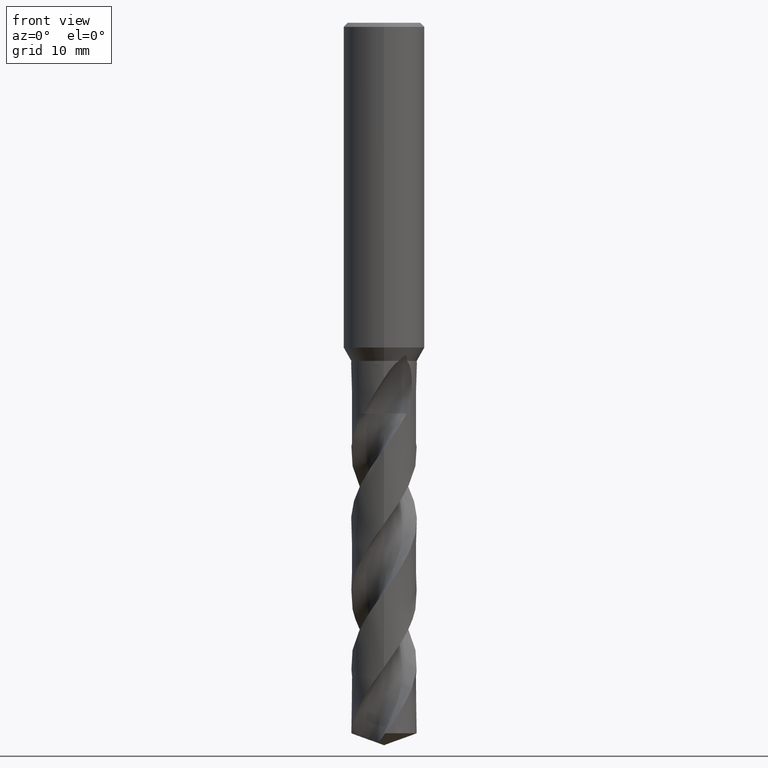
[diagram: clean part render]
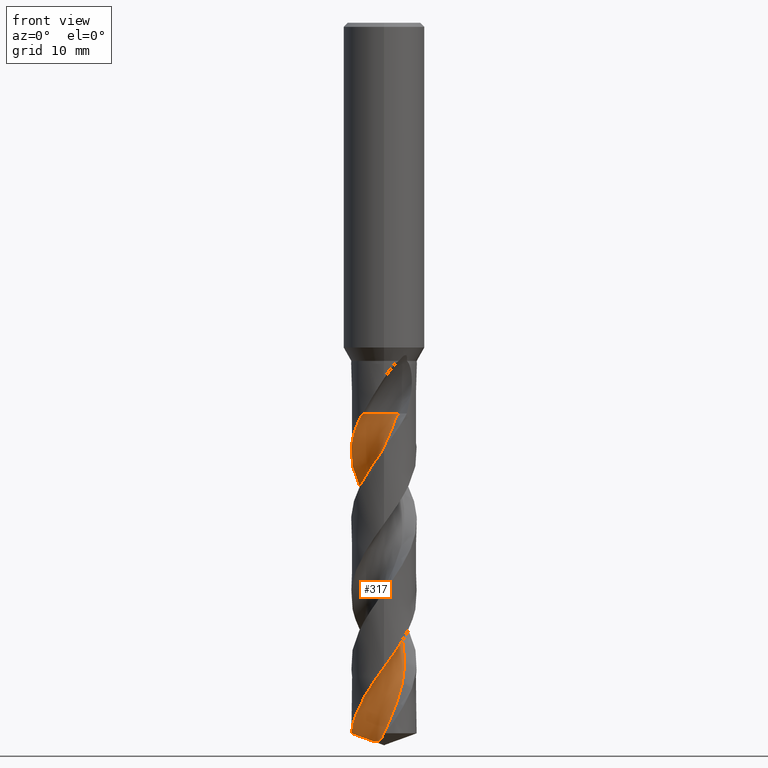
[diagram: same view with one face highlighted and labeled with its STEP entity id]
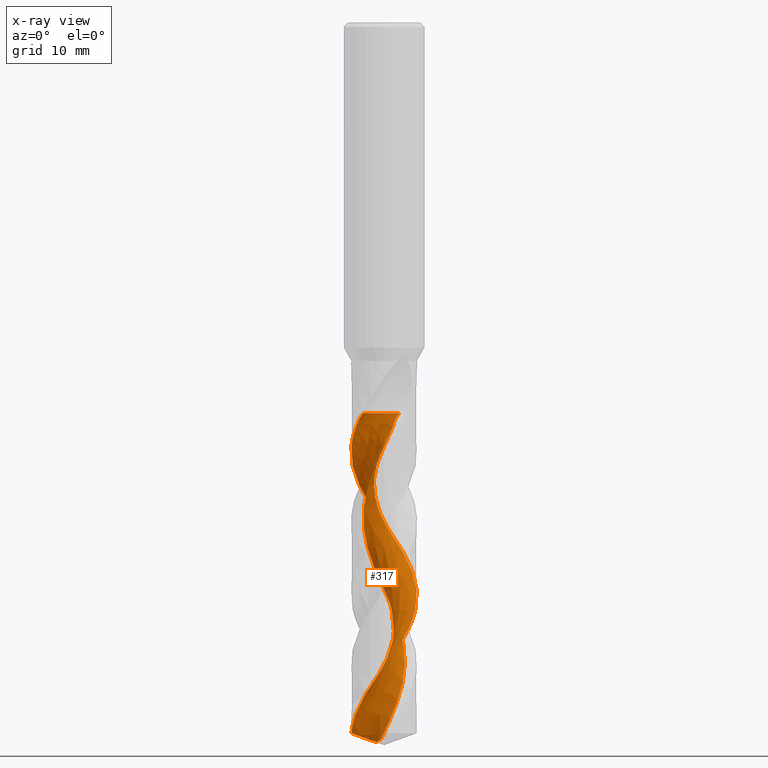
[diagram: x-ray of the same camera — body ghosted, the highlighted face saturated]
A machine part, front view. The second image highlights one B-rep face of the part: STEP entity #317.
The next image is the same camera in x-ray: the body ghosted, the highlighted face saturated — about 0% of this face is hidden behind the body in this view.
In plain terms, the highlighted face is a freeform B-spline surface patch.
Its self-contained STEP definition (entity closure, byte-faithful):
#317=ADVANCED_FACE('',(#836),#837,.F.);
#319=EDGE_CURVE('',#495,#469,#839,.T.);
#349=EDGE_CURVE('',#607,#599,#872,.T.);
#419=VERTEX_POINT('',#948);
#433=EDGE_CURVE('',#469,#695,#963,.T.);
#469=VERTEX_POINT('',#1003);
#491=EDGE_CURVE('',#695,#725,#1025,.T.);
#495=VERTEX_POINT('',#1029);
#521=EDGE_CURVE('',#419,#607,#1057,.T.);
#547=EDGE_CURVE('',#725,#419,#1086,.T.);
#599=VERTEX_POINT('',#1142);
#607=VERTEX_POINT('',#1151);
#695=VERTEX_POINT('',#1251);
#725=VERTEX_POINT('',#1285);
#731=EDGE_CURVE('',#599,#495,#1291,.T.);
#836=FACE_OUTER_BOUND('',#1429,.T.);
#837=B_SPLINE_SURFACE_WITH_KNOTS('',3,3,((#1430,#1431,#1432,#1433,#1434,#1435,#1436,#1437,#1438,#1439,#1440,#1441,#1442,#1443,#1444,#1445,#1446,#1447,#1448,#1449,#1450,#1451,#1452,#1453,#1454,#1455,#1456,#1457,#1458,#1459,#1460,#1461,#1462,#1463,#1464,#1465,#1466,#1467,#1468,#1469,#1470,#1471,#1472,#1473,#1474,#1475,#1476,#1477,#1478,#1479,#1480,#1481,#1482,#1483,#1484,#1485,#1486,#1487,#1488),(#1489,#1490,#1491,#1492,#1493,#1494,#1495,#1496,#1497,#1498,#1499,#1500,#1501,#1502,#1503,#1504,#1505,#1506,#1507,#1508,#1509,#1510,#1511,#1512,#1513,#1514,#1515,#1516,#1517,#1518,#1519,#1520,#1521,#1522,#1523,#1524,#1525,#1526,#1527,#1528,#1529,#1530,#1531,#1532,#1533,#1534,#1535,#1536,#1537,#1538,#1539,#1540,#1541,#1542,#1543,#1544,#1545,#1546,#1547),(#1548,#1549,#1550,#1551,#1552,#1553,#1554,#1555,#1556,#1557,#1558,#1559,#1560,#1561,#1562,#1563,#1564,#1565,#1566,#1567,#1568,#1569,#1570,#1571,#1572,#1573,#1574,#1575,#1576,#1577,#1578,#1579,#1580,#1581,#1582,#1583,#1584,#1585,#1586,#1587,#1588,#1589,#1590,#1591,#1592,#1593,#1594,#1595,#1596,#1597,#1598,#1599,#1600,#1601,#1602,#1603,#1604,#1605,#1606),(#1607,#1608,#1609,#1610,#1611,#1612,#1613,#1614,#1615,#1616,#1617,#1618,#1619,#1620,#1621,#1622,#1623,#1624,#1625,#1626,#1627,#1628,#1629,#1630,#1631,#1632,#1633,#1634,#1635,#1636,#1637,#1638,#1639,#1640,#1641,#1642,#1643,#1644,#1645,#1646,#1647,#1648,#1649,#1650,#1651,#1652,#1653,#1654,#1655,#1656,#1657,#1658,#1659,#1660,#1661,#1662,#1663,#1664,#1665),(#1666,#1667,#1668,#1669,#1670,#1671,#1672,#1673,#1674,#1675,#1676,#1677,#1678,#1679,#1680,#1681,#1682,#1683,#1684,#1685,#1686,#1687,#1688,#1689,#1690,#1691,#1692,#1693,#1694,#1695,#1696,#1697,#1698,#1699,#1700,#1701,#1702,#1703,#1704,#1705,#1706,#1707,#1708,#1709,#1710,#1711,#1712,#1713,#1714,#1715,#1716,#1717,#1718,#1719,#1720,#1721,#1722,#1723,#1724),(#1725,#1726,#1727,#1728,#1729,#1730,#1731,#1732,#1733,#1734,#1735,#1736,#1737,#1738,#1739,#1740,#1741,#1742,#1743,#1744,#1745,#1746,#1747,#1748,#1749,#1750,#1751,#1752,#1753,#1754,#1755,#1756,#1757,#1758,#1759,#1760,#1761,#1762,#1763,#1764,#1765,#1766,#1767,#1768,#1769,#1770,#1771,#1772,#1773,#1774,#1775,#1776,#1777,#1778,#1779,#1780,#1781,#1782,#1783),(#1784,#1785,#1786,#1787,#1788,#1789,#1790,#1791,#1792,#1793,#1794,#1795,#1796,#1797,#1798,#1799,#1800,#1801,#1802,#1803,#1804,#1805,#1806,#1807,#1808,#1809,#1810,#1811,#1812,#1813,#1814,#1815,#1816,#1817,#1818,#1819,#1820,#1821,#1822,#1823,#1824,#1825,#1826,#1827,#1828,#1829,#1830,#1831,#1832,#1833,#1834,#1835,#1836,#1837,#1838,#1839,#1840,#1841,#1842),(#1843,#1844,#1845,#1846,#1847,#1848,#1849,#1850,#1851,#1852,#1853,#1854,#1855,#1856,#1857,#1858,#1859,#1860,#1861,#1862,#1863,#1864,#1865,#1866,#1867,#1868,#1869,#1870,#1871,#1872,#1873,#1874,#1875,#1876,#1877,#1878,#1879,#1880,#1881,#1882,#1883,#1884,#1885,#1886,#1887,#1888,#1889,#1890,#1891,#1892,#1893,#1894,#1895,#1896,#1897,#1898,#1899,#1900,#1901),(#1902,#1903,#1904,#1905,#1906,#1907,#1908,#1909,#1910,#1911,#1912,#1913,#1914,#1915,#1916,#1917,#1918,#1919,#1920,#1921,#1922,#1923,#1924,#1925,#1926,#1927,#1928,#1929,#1930,#1931,#1932,#1933,#1934,#1935,#1936,#1937,#1938,#1939,#1940,#1941,#1942,#1943,#1944,#1945,#1946,#1947,#1948,#1949,#1950,#1951,#1952,#1953,#1954,#1955,#1956,#1957,#1958,#1959,#1960),(#1961,#1962,#1963,#1964,#1965,#1966,#1967,#1968,#1969,#1970,#1971,#1972,#1973,#1974,#1975,#1976,#1977,#1978,#1979,#1980,#1981,#1982,#1983,#1984,#1985,#1986,#1987,#1988,#1989,#1990,#1991,#1992,#1993,#1994,#1995,#1996,#1997,#1998,#1999,#2000,#2001,#2002,#2003,#2004,#2005,#2006,#2007,#2008,#2009,#2010,#2011,#2012,#2013,#2014,#2015,#2016,#2017,#2018,#2019),(#2020,#2021,#2022,#2023,#2024,#2025,#2026,#2027,#2028,#2029,#2030,#2031,#2032,#2033,#2034,#2035,#2036,#2037,#2038,#2039,#2040,#2041,#2042,#2043,#2044,#2045,#2046,#2047,#2048,#2049,#2050,#2051,#2052,#2053,#2054,#2055,#2056,#2057,#2058,#2059,#2060,#2061,#2062,#2063,#2064,#2065,#2066,#2067,#2068,#2069,#2070,#2071,#2072,#2073,#2074,#2075,#2076,#2077,#2078)),.UNSPECIFIED.,.F.,.F.,.F.,(4,1,1,1,1,1,1,1,4),(4,2,2,2,2,2,1,2,2,2,1,2,1,2,1,2,1,2,1,2,1,2,1,2,1,2,1,2,1,2,1,2,1,2,2,4),(5.90380802325483E-017,0.392701233356228,0.785402466712455,1.17810370006868,1.57080493342491,1.96350616678114,2.35620740013737,2.74890863349359,3.14160986684982),(0.0,0.90681920290946,1.81363840581892,2.72045760872838,3.62727681163784,4.5340960145473,5.44091521745676,7.25455362327568,9.0681920290946,10.8818304349135,12.6954688407324,14.5091072465514,16.3227456523703,18.1363840581892,19.9500224640081,21.763660869827,23.577299275646,25.3909376814649,27.2045760872838,29.0182144931027,30.8318528989217,32.6454913047406,34.4591297105595,36.2727681163784,38.0864065221973,39.9000449280163,41.7136833338352,43.5273217396541,45.340960145473,47.1545985512919,48.9682369571109,50.7818753629298,52.5955137687487,54.4091521745676,56.2227905803865,58.0364289862055),.UNSPECIFIED.);
#839=B_SPLINE_CURVE_WITH_KNOTS('',3,(#2081,#2082,#2083,#2084,#2085,#2086,#2087,#2088,#2089,#2090,#2091,#2092,#2093,#2094,#2095,#2096,#2097,#2098,#2099,#2100,#2101,#2102,#2103,#2104,#2105,#2106,#2107,#2108,#2109,#2110,#2111,#2112,#2113,#2114,#2115,#2116,#2117,#2118,#2119,#2120,#2121,#2122,#2123,#2124,#2125,#2126,#2127,#2128,#2129,#2130,#2131,#2132,#2133,#2134,#2135,#2136,#2137,#2138,#2139,#2140,#2141,#2142,#2143,#2144,#2145,#2146,#2147,#2148,#2149,#2150,#2151,#2152,#2153,#2154),.UNSPECIFIED.,.F.,.F.,(4,2,2,2,2,2,2,2,2,2,2,2,2,2,2,2,2,2,2,2,2,2,2,2,2,2,2,2,2,2,2,2,2,2,2,2,4),(0.0,2.31276412127773,3.94955075281643,4.88879188671641,6.9585481482581,8.0572687845927,10.2250197659813,11.2279231842466,13.3844525435026,14.4016385642306,16.5569733147601,17.584530396525,19.7343078446984,20.7773809202594,22.9250483749578,23.9821960926977,26.1410299713109,27.1937754578287,29.3505934263984,30.4197652540692,32.7184507255187,33.7170171180648,36.0353271033316,36.9300780357254,39.5990312634929,39.8623619489088,44.6244012050352,45.8135781190482,46.7306301994312,47.3687048196616,47.7589940749876,48.0926672523444,48.2878318042666,48.4669974283697,48.7043093134106,48.9815647509657,49.3654111208811),.UNSPECIFIED.);
#872=B_SPLINE_CURVE_WITH_KNOTS('',3,(#2454,#2455,#2456,#2457,#2458,#2459,#2460,#2461,#2462,#2463,#2464,#2465,#2466,#2467,#2468,#2469,#2470,#2471,#2472,#2473,#2474,#2475,#2476,#2477,#2478,#2479,#2480,#2481,#2482,#2483,#2484,#2485,#2486,#2487,#2488,#2489,#2490,#2491,#2492,#2493,#2494,#2495,#2496,#2497,#2498,#2499,#2500,#2501,#2502,#2503,#2504,#2505,#2506,#2507,#2508,#2509,#2510,#2511,#2512),.UNSPECIFIED.,.F.,.F.,(4,2,2,2,2,2,1,2,2,2,1,2,1,2,1,2,1,2,1,2,1,2,1,2,1,2,1,2,1,2,1,2,1,2,2,4),(0.0,0.90681920290946,1.81363840581892,2.72045760872838,3.62727681163784,4.5340960145473,5.44091521745676,7.25455362327568,9.0681920290946,10.8818304349135,12.6954688407324,14.5091072465514,16.3227456523703,18.1363840581892,19.9500224640081,21.763660869827,23.577299275646,25.3909376814649,27.2045760872838,29.0182144931027,30.8318528989217,32.6454913047406,34.4591297105595,36.2727681163784,38.0864065221973,39.9000449280163,41.7136833338352,43.5273217396541,45.340960145473,47.1545985512919,48.9682369571109,50.7818753629298,52.5955137687487,54.4091521745676,56.2227905803865,58.0364289862055),.UNSPECIFIED.);
#948=CARTESIAN_POINT('',(0.31859667807486,-1.23384841949216,-48.1286));
#963=B_SPLINE_CURVE_WITH_KNOTS('',3,(#2980,#2981,#2982,#2983,#2984,#2985,#2986,#2987,#2988,#2989,#2990,#2991,#2992,#2993,#2994,#2995,#2996,#2997,#2998,#2999,#3000,#3001,#3002,#3003,#3004,#3005,#3006,#3007,#3008,#3009,#3010,#3011,#3012,#3013,#3014,#3015,#3016,#3017,#3018,#3019,#3020,#3021,#3022,#3023,#3024,#3025,#3026,#3027,#3028,#3029,#3030,#3031,#3032,#3033,#3034,#3035,#3036,#3037,#3038,#3039,#3040,#3041,#3042,#3043,#3044,#3045,#3046,#3047,#3048,#3049,#3050,#3051,#3052,#3053),.UNSPECIFIED.,.F.,.F.,(4,2,2,2,2,2,2,2,2,2,2,2,2,2,2,2,2,2,2,2,2,2,2,2,2,2,2,2,2,2,2,2,2,2,2,2,4),(0.0,2.31276412127773,3.94955075281643,4.88879188671641,6.9585481482581,8.0572687845927,10.2250197659813,11.2279231842466,13.3844525435026,14.4016385642306,16.5569733147601,17.584530396525,19.7343078446984,20.7773809202594,22.9250483749578,23.9821960926977,26.1410299713109,27.1937754578287,29.3505934263984,30.4197652540692,32.7184507255187,33.7170171180648,36.0353271033316,36.9300780357254,39.5990312634929,39.8623619489088,44.6244012050352,45.8135781190482,46.7306301994312,47.3687048196616,47.7589940749876,48.0926672523444,48.2878318042666,48.4669974283697,48.7043093134106,48.9815647509657,49.3654111208811),.UNSPECIFIED.);
#1003=CARTESIAN_POINT('',(1.15709504617544E-013,-4.04998215709331,-79.4027730247058));
#1025=B_SPLINE_CURVE_WITH_KNOTS('',3,(#3237,#3238,#3239,#3240,#3241,#3242,#3243,#3244,#3245,#3246,#3247,#3248,#3249,#3250,#3251,#3252,#3253,#3254,#3255,#3256,#3257,#3258,#3259,#3260,#3261,#3262,#3263,#3264,#3265,#3266,#3267,#3268,#3269,#3270,#3271,#3272,#3273,#3274,#3275,#3276,#3277,#3278,#3279,#3280,#3281,#3282,#3283,#3284,#3285,#3286,#3287,#3288,#3289,#3290,#3291,#3292,#3293,#3294,#3295,#3296,#3297,#3298,#3299,#3300,#3301,#3302,#3303,#3304,#3305,#3306,#3307,#3308,#3309,#3310),.UNSPECIFIED.,.F.,.F.,(4,2,2,2,2,2,2,2,2,2,2,2,2,2,2,2,2,2,2,2,2,2,2,2,2,2,2,2,2,2,2,2,2,2,2,2,4),(0.0,2.31276412127773,3.94955075281643,4.88879188671641,6.9585481482581,8.0572687845927,10.2250197659813,11.2279231842466,13.3844525435026,14.4016385642306,16.5569733147601,17.584530396525,19.7343078446984,20.7773809202594,22.9250483749578,23.9821960926977,26.1410299713109,27.1937754578287,29.3505934263984,30.4197652540692,32.7184507255187,33.7170171180648,36.0353271033316,36.9300780357254,39.5990312634929,39.8623619489088,44.6244012050352,45.8135781190482,46.7306301994312,47.3687048196616,47.7589940749876,48.0926672523444,48.2878318042666,48.4669974283697,48.7043093134106,48.9815647509657,49.3654111208811),.UNSPECIFIED.);
#1029=CARTESIAN_POINT('',(-4.01871047843904,-0.50246003869387,-87.5259205512219));
#1057=CIRCLE('',#3478,2.7);
#1086=CIRCLE('',#3544,2.7);
#1142=CARTESIAN_POINT('',(-0.252765252237242,-2.54082327709938,-88.070651116058));
#1151=CARTESIAN_POINT('',(1.90918830913297,-2.00581169086703,-48.1286));
#1251=CARTESIAN_POINT('',(-3.95619633230269E-012,4.04994339554162,-61.756219799824));
#1285=CARTESIAN_POINT('',(-2.58069286403752,-3.12118941902374,-48.1286));
#1291=B_SPLINE_CURVE_WITH_KNOTS('',3,(#5065,#5066,#5067,#5068,#5069,#5070,#5071,#5072,#5073,#5074,#5075,#5076,#5077,#5078,#5079,#5080,#5081,#5082,#5083,#5084),.UNSPECIFIED.,.F.,.F.,(4,2,2,2,2,2,2,2,2,4),(0.0,1.67269549240648,2.81818733476393,3.87729996188905,5.02165190928643,6.28106121711192,7.73539956672382,9.39007036308006,10.6200883203306,11.8528489668844),.UNSPECIFIED.);
#1429=EDGE_LOOP('',(#5452,#5453,#5454,#5455,#5456,#5457,#5458));
#1430=CARTESIAN_POINT('',(-1.90918830913297,-5.82418830913297,-48.1286));
#1431=CARTESIAN_POINT('',(-2.12362146569719,-5.81365307061738,-48.3412003757292));
#1432=CARTESIAN_POINT('',(-2.34165182068043,-5.77460974682905,-48.5559528469744));
#1433=CARTESIAN_POINT('',(-2.77316016736938,-5.61859360211585,-48.9845534911266));
#1434=CARTESIAN_POINT('',(-2.98580092048473,-5.51205000695028,-49.1986948958965));
#1435=CARTESIAN_POINT('',(-3.38948163090528,-5.23255991238639,-49.6205638833519));
#1436=CARTESIAN_POINT('',(-3.58290884000048,-5.0900860639432,-49.8314989241395));
#1437=CARTESIAN_POINT('',(-3.95852714206461,-4.80497618602669,-50.2575135662244));
#1438=CARTESIAN_POINT('',(-4.13868501893349,-4.65338202575444,-50.4708072151861));
#1439=CARTESIAN_POINT('',(-4.48172937930689,-4.33339557642521,-50.8983702740807));
#1440=CARTESIAN_POINT('',(-4.64357393531417,-4.16188621183558,-51.1117627745039));
#1441=CARTESIAN_POINT('',(-4.9441526018695,-3.79664884925648,-51.5369263585699));
#1442=CARTESIAN_POINT('',(-5.36431882829479,-3.22419972339332,-52.175010141152));
#1443=CARTESIAN_POINT('',(-5.68511849516559,-2.58821693136362,-52.8137678688576));
#1444=CARTESIAN_POINT('',(-6.00953688986346,-1.70084998135546,-53.6657095123283));
#1445=CARTESIAN_POINT('',(-6.12249338448068,-1.23993562062864,-54.0915291004374));
#1446=CARTESIAN_POINT('',(-6.23894775189642,-0.302518237799896,-54.9429200145649));
#1447=CARTESIAN_POINT('',(-6.2448828259372,0.172457228742807,-55.3688295153619));
#1448=CARTESIAN_POINT('',(-6.14335710813571,1.11291634625083,-56.2205524476934));
#1449=CARTESIAN_POINT('',(-5.94052190202743,2.03958376429992,-57.071714114487));
#1450=CARTESIAN_POINT('',(-5.53595148971552,2.89866015223594,-57.9240441580465));
#1451=CARTESIAN_POINT('',(-5.03059879558444,3.69882290777109,-58.775553559747));
#1452=CARTESIAN_POINT('',(-4.44040028098129,4.44187483068788,-59.626423806976));
#1453=CARTESIAN_POINT('',(-3.69934385929583,5.03582646122422,-60.4786635390855));
#1454=CARTESIAN_POINT('',(-2.89398480407119,5.53280344279864,-61.3303158214618));
#1455=CARTESIAN_POINT('',(-2.03745698121065,5.94115343713328,-62.1813148829865));
#1456=CARTESIAN_POINT('',(-1.11084802699471,6.14911676979881,-63.0335754048077));
#1457=CARTESIAN_POINT('',(-0.169042453086557,6.24168100903003,-63.885173114925));
#1458=CARTESIAN_POINT('',(0.779799199605532,6.23217975804465,-64.7361292928083));
#1459=CARTESIAN_POINT('',(1.70357851216006,6.01191882645358,-65.5883866575101));
#1460=CARTESIAN_POINT('',(2.59030258764202,5.68131042028421,-66.4400030384878));
#1461=CARTESIAN_POINT('',(3.4384954765284,5.25591807686747,-67.2909708569534));
#1462=CARTESIAN_POINT('',(4.17157690983166,4.65221776229068,-68.1432263529384));
#1463=CARTESIAN_POINT('',(4.8229068723091,3.96568229202899,-68.9948365988704));
#1464=CARTESIAN_POINT('',(5.39799076973324,3.21092214340055,-69.8458034397026));
#1465=CARTESIAN_POINT('',(5.79131866758372,2.34653299651598,-70.6980613074456));
#1466=CARTESIAN_POINT('',(6.07479601919833,1.44363697282838,-71.5496716250705));
#1467=CARTESIAN_POINT('',(6.25980269376646,0.512954936569184,-72.4006367065626));
#1468=CARTESIAN_POINT('',(6.23337746458122,-0.436349625950291,-73.2528942455053));
#1469=CARTESIAN_POINT('',(6.09135997504793,-1.37198170149028,-74.1045069346652));
#1470=CARTESIAN_POINT('',(5.84867642102993,-2.28931164062009,-74.9554723131582));
#1471=CARTESIAN_POINT('',(5.40788405878505,-3.13048477440287,-75.8077275627233));
#1472=CARTESIAN_POINT('',(4.86926578967164,-3.90859989694885,-76.6593383117941));
#1473=CARTESIAN_POINT('',(4.24826323778473,-4.62605628121984,-77.5103067357129));
#1474=CARTESIAN_POINT('',(3.48275400100956,-5.1880652602925,-78.3625698045706));
#1475=CARTESIAN_POINT('',(2.65706735732501,-5.65043719137938,-79.2141867227938));
#1476=CARTESIAN_POINT('',(1.78400683855745,-6.02209772902673,-80.0651444684184));
#1477=CARTESIAN_POINT('',(0.849397925765105,-6.19062507767342,-80.9173738950682));
#1478=CARTESIAN_POINT('',(-0.095527241696767,-6.24325122431912,-81.7689577962102));
#1479=CARTESIAN_POINT('',(-1.04319074410304,-6.19364099127125,-82.6199625113967));
#1480=CARTESIAN_POINT('',(-1.95681329482644,-5.93432885228116,-83.4723147930949));
#1481=CARTESIAN_POINT('',(-2.82854810660302,-5.56611890867109,-84.3239891977916));
#1482=CARTESIAN_POINT('',(-3.65753219922601,-5.10497627247622,-85.1747729709498));
#1483=CARTESIAN_POINT('',(-4.36467200098953,-4.47171350327307,-86.0268017410352));
#1484=CARTESIAN_POINT('',(-4.9877531387088,-3.75987678976644,-86.8784480350807));
#1485=CARTESIAN_POINT('',(-5.25964807042637,-3.37016886197276,-87.3044206762508));
#1486=CARTESIAN_POINT('',(-5.70524080801879,-2.53672210080783,-88.1559923916661));
#1487=CARTESIAN_POINT('',(-5.88245451096233,-2.09794697868343,-88.5809808382436));
#1488=CARTESIAN_POINT('',(-6.01045199895583,-1.64544339477658,-89.0065216753959));
#1489=CARTESIAN_POINT('',(-2.15909149862892,-5.57426443011031,-48.1286000000003));
#1490=CARTESIAN_POINT('',(-2.37374273249347,-5.56394725132347,-48.3412062665999));
#1491=CARTESIAN_POINT('',(-2.58830680183395,-5.52126364086501,-48.5561807040284));
#1492=CARTESIAN_POINT('',(-3.00440395317289,-5.35110739689282,-48.985144090499));
#1493=CARTESIAN_POINT('',(-3.20646470433534,-5.2354279996251,-49.1994670259803));
#1494=CARTESIAN_POINT('',(-3.582083402482,-4.93571459689845,-49.6207957788833));
#1495=CARTESIAN_POINT('',(-3.76259523898303,-4.78545823774197,-49.8314548178653));
#1496=CARTESIAN_POINT('',(-4.1151623479823,-4.48787901509729,-50.2574966502051));
#1497=CARTESIAN_POINT('',(-4.28368078991195,-4.33081234967029,-50.4708452837822));
#1498=CARTESIAN_POINT('',(-4.60319407751315,-4.00124934991225,-50.8986530655132));
#1499=CARTESIAN_POINT('',(-4.75258293357072,-3.82540951543794,-51.1121134347777));
#1500=CARTESIAN_POINT('',(-5.02690545725012,-3.4527718033095,-51.5371876392713));
#1501=CARTESIAN_POINT('',(-5.40736831259826,-2.87159901747165,-52.1751847208112));
#1502=CARTESIAN_POINT('',(-5.68805934827044,-2.23377672254095,-52.8139492206874));
#1503=CARTESIAN_POINT('',(-5.95882798592304,-1.35004396077267,-53.6659367329969));
#1504=CARTESIAN_POINT('',(-6.04550545389171,-0.893947357017111,-54.0917582535171));
#1505=CARTESIAN_POINT('',(-6.11055936640707,0.0278621729109705,-54.9431185228182));
#1506=CARTESIAN_POINT('',(-6.09187632474939,0.492206270194681,-55.3690424427813));
#1507=CARTESIAN_POINT('',(-5.94331838930966,1.40555041653766,-56.2207808662131));
#1508=CARTESIAN_POINT('',(-5.69770048400326,2.30043298115152,-57.0718800239074));
#1509=CARTESIAN_POINT('',(-5.25825913468507,3.11899030739869,-57.9243099255407));
#1510=CARTESIAN_POINT('',(-4.72237321471726,3.8739091185186,-58.7758051575232));
#1511=CARTESIAN_POINT('',(-4.10762951107992,4.56944500138641,-59.6265723846573));
#1512=CARTESIAN_POINT('',(-3.35307434175972,5.11168236179805,-60.4788994306023));
#1513=CARTESIAN_POINT('',(-2.54017895759713,5.55466373556367,-61.3305573921116));
#1514=CARTESIAN_POINT('',(-1.68247392393569,5.90957775573354,-62.181471346325));
#1515=CARTESIAN_POINT('',(-0.766456184402133,6.06514471212934,-63.0338220541234));
#1516=CARTESIAN_POINT('',(0.158394292337863,6.10587976409272,-63.8854178805679));
#1517=CARTESIAN_POINT('',(1.08481428985645,6.04785470149633,-64.7362829672331));
#1518=CARTESIAN_POINT('',(1.97606118719428,5.78518065979289,-65.5886301106675));
#1519=CARTESIAN_POINT('',(2.82478476419045,5.41546296065437,-66.4402471663937));
#1520=CARTESIAN_POINT('',(3.63151783893517,4.95633124128461,-67.2911255374514));
#1521=CARTESIAN_POINT('',(4.31674243048226,4.32882344829709,-68.143470540026));
#1522=CARTESIAN_POINT('',(4.91675718128291,3.62385078530624,-68.9950806172709));
#1523=CARTESIAN_POINT('',(5.43977628793846,2.8569957799336,-69.8459578784991));
#1524=CARTESIAN_POINT('',(5.77965160398858,1.99224370000682,-70.6983055791587));
#1525=CARTESIAN_POINT('',(6.00892674824672,1.09532960266593,-71.5499157280965));
#1526=CARTESIAN_POINT('',(6.14184591594579,0.17665715331013,-72.4007909602761));
#1527=CARTESIAN_POINT('',(6.06724372638285,-0.749489508882001,-73.2531382846171));
#1528=CARTESIAN_POINT('',(5.87916404042568,-1.65593529359303,-74.1047511986932));
#1529=CARTESIAN_POINT('',(5.59496578141795,-2.53959320166503,-74.9556268437463));
#1530=CARTESIAN_POINT('',(5.12106972190145,-3.33879820115795,-75.8079715721236));
#1531=CARTESIAN_POINT('',(4.55389606935168,-4.07045983642413,-76.6595820400493));
#1532=CARTESIAN_POINT('',(3.9103938869315,-4.73943188634244,-77.5104608321731));
#1533=CARTESIAN_POINT('',(3.13358398382561,-5.24919832847391,-78.3628145474694));
#1534=CARTESIAN_POINT('',(2.30265280141583,-5.65729460302173,-79.2144327589606));
#1535=CARTESIAN_POINT('',(1.43067993265613,-5.975509982957,-80.0653007413727));
#1536=CARTESIAN_POINT('',(0.508873361181065,-6.09213676673254,-80.9176157108369));
#1537=CARTESIAN_POINT('',(-0.416917861954015,-6.09370272850923,-81.7691937641588));
#1538=CARTESIAN_POINT('',(-1.34012923289766,-5.99656868395311,-82.6201101904563));
#1539=CARTESIAN_POINT('',(-2.21944096181018,-5.69624263164334,-83.4725666677436));
#1540=CARTESIAN_POINT('',(-3.05151346098739,-5.29053856016096,-84.3242579411521));
#1541=CARTESIAN_POINT('',(-3.83762220256479,-4.79744961724669,-85.1749417565833));
#1542=CARTESIAN_POINT('',(-4.49609019365235,-4.14250494811358,-86.0270267694604));
#1543=CARTESIAN_POINT('',(-5.0674094643211,-3.41447318887743,-86.8786523712193));
#1544=CARTESIAN_POINT('',(-5.31293381171819,-3.01973303629777,-87.3046236009322));
#1545=CARTESIAN_POINT('',(-5.70460233832447,-2.18225916539491,-88.1562356887977));
#1546=CARTESIAN_POINT('',(-5.85537845103585,-1.74458830759928,-88.5811811266476));
#1547=CARTESIAN_POINT('',(-5.95755366644935,-1.29599343967379,-89.0067331533787));
#1548=CARTESIAN_POINT('',(-2.55940695921664,-4.97514451146173,-48.1286));
#1549=CARTESIAN_POINT('',(-2.77458097270847,-4.96517663990064,-48.3412159551546));
#1550=CARTESIAN_POINT('',(-2.98076632361431,-4.91659238929622,-48.5565554539378));
#1551=CARTESIAN_POINT('',(-3.36042475994077,-4.72429013230688,-48.9861154376234));
#1552=CARTESIAN_POINT('',(-3.5376970611525,-4.59455006873466,-49.2007369313496));
#1553=CARTESIAN_POINT('',(-3.84916119090142,-4.26555827082004,-49.6211771720555));
#1554=CARTESIAN_POINT('',(-4.00075292221013,-4.10487613344239,-49.831382278099));
#1555=CARTESIAN_POINT('',(-4.30226874389687,-3.791530099865,-50.2574688279673));
#1556=CARTESIAN_POINT('',(-4.44533699830734,-3.62814931038177,-50.4709078940684));
#1557=CARTESIAN_POINT('',(-4.71398983015438,-3.28879464495422,-50.8991181665599));
#1558=CARTESIAN_POINT('',(-4.83675046533528,-3.10924881346231,-51.1126901575047));
#1559=CARTESIAN_POINT('',(-5.05562889676962,-2.73225467247216,-51.5376173622209));
#1560=CARTESIAN_POINT('',(-5.35323263721055,-2.14942688760142,-52.175471846002));
#1561=CARTESIAN_POINT('',(-5.55299181747792,-1.52387608061781,-52.8142474927064));
#1562=CARTESIAN_POINT('',(-5.71792868617736,-0.668744735523096,-53.6663104310566));
#1563=CARTESIAN_POINT('',(-5.75397503509755,-0.232731818597698,-54.0921351359523));
#1564=CARTESIAN_POINT('',(-5.72245634403972,0.637428468859214,-54.9434450054434));
#1565=CARTESIAN_POINT('',(-5.65877515889352,1.07072457887876,-55.3693926413451));
#1566=CARTESIAN_POINT('',(-5.4269552197702,1.9111471979394,-56.2211565394734));
#1567=CARTESIAN_POINT('',(-5.10842965187371,2.72546029357062,-57.0721528793873));
#1568=CARTESIAN_POINT('',(-4.61537400253351,3.44912967941881,-57.924747053085));
#1569=CARTESIAN_POINT('',(-4.03642640736131,4.10143768725397,-58.7762189291063));
#1570=CARTESIAN_POINT('',(-3.39149808327103,4.69220075843516,-59.626816753925));
#1571=CARTESIAN_POINT('',(-2.63051595847171,5.12566338783119,-60.4792874080467));
#1572=CARTESIAN_POINT('',(-1.82402318965608,5.45767937207522,-61.330954686049));
#1573=CARTESIAN_POINT('',(-0.985213810964588,5.70527579704814,-62.1817286668864));
#1574=CARTESIAN_POINT('',(-0.111210140113015,5.76028382052997,-63.0342277470817));
#1575=CARTESIAN_POINT('',(0.759126689122112,5.70412471901468,-63.8858204068383));
#1576=CARTESIAN_POINT('',(1.62141662472656,5.55798879531,-64.7365357433789));
#1577=CARTESIAN_POINT('',(2.43074626977102,5.22344330145801,-65.5890304844492));
#1578=CARTESIAN_POINT('',(3.1879324951741,4.79063492861765,-66.4406487063092));
#1579=CARTESIAN_POINT('',(3.89834645619137,4.28052573445003,-67.2913799267176));
#1580=CARTESIAN_POINT('',(4.47841016783457,3.62444393716779,-68.1438721415157));
#1581=CARTESIAN_POINT('',(4.96848428624177,2.90301081292048,-68.9954819564531));
#1582=CARTESIAN_POINT('',(5.3825860541749,2.13267553992343,-69.8462118776235));
#1583=CARTESIAN_POINT('',(5.61543438763452,1.28845383098487,-70.6987073257261));
#1584=CARTESIAN_POINT('',(5.73870672867276,0.425055345632958,-71.5503172005866));
#1585=CARTESIAN_POINT('',(5.7722486137335,-0.448889662938637,-72.4010446442236));
#1586=CARTESIAN_POINT('',(5.61052181994142,-1.30957205728567,-73.2535396759808));
#1587=CARTESIAN_POINT('',(5.34194347243013,-2.13934030724439,-74.1051529086359));
#1588=CARTESIAN_POINT('',(4.9881234533021,-2.9391593968355,-74.9558810297353));
#1589=CARTESIAN_POINT('',(4.46472311379982,-3.64128168490774,-75.8083728486602));
#1590=CARTESIAN_POINT('',(3.85892358278442,-4.26870046886345,-76.6599829347548));
#1591=CARTESIAN_POINT('',(3.18971210765406,-4.83177696720089,-77.5107142740855));
#1592=CARTESIAN_POINT('',(2.41108057206248,-5.232586468422,-78.3632170245949));
#1593=CARTESIAN_POINT('',(1.59124595294807,-5.53006872915094,-79.2148374552087));
#1594=CARTESIAN_POINT('',(0.742701185115418,-5.74184882120383,-80.0655576927659));
#1595=CARTESIAN_POINT('',(-0.132867161357096,-5.75978733463597,-80.9180135082897));
#1596=CARTESIAN_POINT('',(-1.0000937715391,-5.66686331949819,-81.7695817669487));
#1597=CARTESIAN_POINT('',(-1.85551265204652,-5.48442539455257,-82.6203531397483));
#1598=CARTESIAN_POINT('',(-2.64990745400825,-5.11573294386637,-83.4729808790882));
#1599=CARTESIAN_POINT('',(-3.38776200395689,-4.65082863601856,-84.3246999786187));
#1600=CARTESIAN_POINT('',(-4.07543415674085,-4.11091055690483,-85.1752193456457));
#1601=CARTESIAN_POINT('',(-4.62795695807114,-3.43196621458437,-86.0273968453241));
#1602=CARTESIAN_POINT('',(-5.08933407356123,-2.69213499317103,-86.878988461663));
#1603=CARTESIAN_POINT('',(-5.28012723360497,-2.2978191387638,-87.3049572870813));
#1604=CARTESIAN_POINT('',(-5.56236862201065,-1.47373643855166,-88.1566358937207));
#1605=CARTESIAN_POINT('',(-5.66071979432093,-1.04878692809411,-88.5815105535397));
#1606=CARTESIAN_POINT('',(-5.71281570425594,-0.618276423660841,-89.0070809664991));
#1607=CARTESIAN_POINT('',(-2.77029098440045,-3.91500225233271,-48.1286));
#1608=CARTESIAN_POINT('',(-2.98639005520693,-3.90521839281426,-48.3412220034816));
#1609=CARTESIAN_POINT('',(-3.17757584531196,-3.85326604937214,-48.556789395419));
#1610=CARTESIAN_POINT('',(-3.49402029746885,-3.65118802330332,-48.9867218092515));
#1611=CARTESIAN_POINT('',(-3.62886627109388,-3.51619018060458,-49.2015296807026));
#1612=CARTESIAN_POINT('',(-3.83460801664158,-3.18344977289915,-49.6214152605813));
#1613=CARTESIAN_POINT('',(-3.9401335427645,-3.02491984324982,-49.8313369947752));
#1614=CARTESIAN_POINT('',(-4.16184471304929,-2.71902819768187,-50.2574514594117));
#1615=CARTESIAN_POINT('',(-4.26601606161877,-2.56150624949707,-50.4709469782518));
#1616=CARTESIAN_POINT('',(-4.45855886671595,-2.23777734509004,-50.8994085108947));
#1617=CARTESIAN_POINT('',(-4.54228718889849,-2.06838109358529,-51.1130501811815));
#1618=CARTESIAN_POINT('',(-4.68182292362149,-1.71717722236199,-51.5378856212563));
#1619=CARTESIAN_POINT('',(-4.86363937725792,-1.17962130586413,-52.1756510851923));
#1620=CARTESIAN_POINT('',(-4.95827689492046,-0.617537112698022,-52.8144336942196));
#1621=CARTESIAN_POINT('',(-4.99295673485818,0.137201642412062,-53.6665437128733));
#1622=CARTESIAN_POINT('',(-4.97036080122833,0.516314977530043,-54.092370406293));
#1623=CARTESIAN_POINT('',(-4.83464834831,1.25945507130892,-54.9436488170289));
#1624=CARTESIAN_POINT('',(-4.72642589453039,1.6238894566994,-55.3696112576576));
#1625=CARTESIAN_POINT('',(-4.42107118195152,2.31545095546075,-56.2213910551387));
#1626=CARTESIAN_POINT('',(-4.04775160867654,2.97624724253209,-57.0723232223381));
#1627=CARTESIAN_POINT('',(-3.5348607200792,3.53763095385109,-57.9250199146332));
#1628=CARTESIAN_POINT('',(-2.95513650338039,4.02300754192236,-58.776477248945));
#1629=CARTESIAN_POINT('',(-2.32851955931467,4.45123487100838,-59.6269692934595));
#1630=CARTESIAN_POINT('',(-1.62107241418303,4.73025362131237,-60.4795296075404));
#1631=CARTESIAN_POINT('',(-0.887153208453903,4.91215441882965,-61.3312026992367));
#1632=CARTESIAN_POINT('',(-0.136138004211534,5.02186292390677,-62.1818893030092));
#1633=CARTESIAN_POINT('',(0.621910967455408,4.96162124690635,-63.034481002714));
#1634=CARTESIAN_POINT('',(1.36107317760738,4.80246703277929,-63.8860716892845));
#1635=CARTESIAN_POINT('',(2.08390274417226,4.57102940086156,-64.7366935280434));
#1636=CARTESIAN_POINT('',(2.7384426547271,4.18389964699744,-65.5892804457738));
#1637=CARTESIAN_POINT('',(3.33254685239446,3.71619904945316,-66.4408993467829));
#1638=CARTESIAN_POINT('',(3.88020513066122,3.19073083093241,-67.291538739976));
#1639=CARTESIAN_POINT('',(4.29811994636813,2.55541512358744,-68.144122852269));
#1640=CARTESIAN_POINT('',(4.62637454243402,1.87428064327289,-68.9957324885971));
#1641=CARTESIAN_POINT('',(4.88752623906465,1.16164632032018,-69.8463704396531));
#1642=CARTESIAN_POINT('',(4.98382787160117,0.407317358307544,-70.6989581254093));
#1643=CARTESIAN_POINT('',(4.97942710875008,-0.348779550643267,-71.5505678175796));
#1644=CARTESIAN_POINT('',(4.90091465876162,-1.10368739186742,-72.4012030187296));
#1645=CARTESIAN_POINT('',(4.6560188712089,-1.8236267034332,-73.2537902338594));
#1646=CARTESIAN_POINT('',(4.31989169706843,-2.50091451968335,-74.1054036939213));
#1647=CARTESIAN_POINT('',(3.91770852594392,-3.14457196886254,-74.9560397139612));
#1648=CARTESIAN_POINT('',(3.38142907370281,-3.68372612607426,-75.8086233221679));
#1649=CARTESIAN_POINT('',(2.78193752597809,-4.14449797713833,-76.6602332238115));
#1650=CARTESIAN_POINT('',(2.1378844274383,-4.54605177989948,-77.5108724621081));
#1651=CARTESIAN_POINT('',(1.41927511484077,-4.79480856161053,-78.3634682982915));
#1652=CARTESIAN_POINT('',(0.678317883057104,-4.94535719177642,-79.2150900667138));
#1653=CARTESIAN_POINT('',(-0.0766575456626591,-5.02307403833685,-80.0657181274914));
#1654=CARTESIAN_POINT('',(-0.831490645569757,-4.93078037647696,-80.9182617996118));
#1655=CARTESIAN_POINT('',(-1.56330837889409,-4.74051871266907,-81.7698240184587));
#1656=CARTESIAN_POINT('',(-2.27580237369139,-4.47877183380088,-82.6205047621592));
#1657=CARTESIAN_POINT('',(-2.91326220417939,-4.06407481508496,-83.4732394986612));
#1658=CARTESIAN_POINT('',(-3.4865529084893,-3.57120898709488,-84.3249758800374));
#1659=CARTESIAN_POINT('',(-4.01091606095952,-3.0228967271866,-85.1753926599422));
#1660=CARTESIAN_POINT('',(-4.40282884713116,-2.37150849574928,-86.0276278592044));
#1661=CARTESIAN_POINT('',(-4.70505998134908,-1.67843662165476,-86.8791982784252));
#1662=CARTESIAN_POINT('',(-4.82024294443525,-1.31612740248018,-87.3051656076665));
#1663=CARTESIAN_POINT('',(-4.95851283990044,-0.573420848193457,-88.1568857112003));
#1664=CARTESIAN_POINT('',(-4.99150929810676,-0.196197003702489,-88.5817162065878));
#1665=CARTESIAN_POINT('',(-4.98457999136889,0.180501631246637,-89.0072980919518));
#1666=CARTESIAN_POINT('',(-2.55942125941319,-2.8548571487031,-48.1286));
#1667=CARTESIAN_POINT('',(-2.77644539012139,-2.84488928928839,-48.3412186454184));
#1668=CARTESIAN_POINT('',(-2.95248454141993,-2.79556534274563,-48.5566594826861));
#1669=CARTESIAN_POINT('',(-3.2067867170631,-2.60864642918474,-48.9863850775047));
#1670=CARTESIAN_POINT('',(-3.30042435686372,-2.48502663589807,-49.2010894484534));
#1671=CARTESIAN_POINT('',(-3.40705543889722,-2.18928205406485,-49.621283045726));
#1672=CARTESIAN_POINT('',(-3.47084506273666,-2.05036937053699,-49.8313621417643));
#1673=CARTESIAN_POINT('',(-3.6216791033826,-1.78190475304997,-50.2574611043986));
#1674=CARTESIAN_POINT('',(-3.69215649058828,-1.64468097000875,-50.4709252729072));
#1675=CARTESIAN_POINT('',(-3.82036278464314,-1.36451441809925,-50.8992472772878));
#1676=CARTESIAN_POINT('',(-3.8719141919596,-1.2194321144634,-51.1128502512805));
#1677=CARTESIAN_POINT('',(-3.94801632727644,-0.922418723025558,-51.5377366518524));
#1678=CARTESIAN_POINT('',(-4.04018417596033,-0.470998705000857,-52.1755515495791));
#1679=CARTESIAN_POINT('',(-4.06198978402156,-0.00777848294895231,-52.8143302897601));
#1680=CARTESIAN_POINT('',(-4.01474670162847,0.604362289607735,-53.6664141689501));
#1681=CARTESIAN_POINT('',(-3.95974705385557,0.90846577368975,-54.092239756568));
#1682=CARTESIAN_POINT('',(-3.77638093300431,1.49438114597281,-54.943535634836));
#1683=CARTESIAN_POINT('',(-3.65336013838559,1.77815037745877,-55.3694898540416));
#1684=CARTESIAN_POINT('',(-3.33703515610336,2.30404158514108,-56.2212608245323));
#1685=CARTESIAN_POINT('',(-2.97184122903775,2.80203801714325,-57.0722286332006));
#1686=CARTESIAN_POINT('',(-2.50272926355954,3.20589890476581,-57.9248683752854));
#1687=CARTESIAN_POINT('',(-1.98616975697204,3.53675388093133,-58.7763338115029));
#1688=CARTESIAN_POINT('',(-1.43867042461956,3.82182526740561,-59.6268845829204));
#1689=CARTESIAN_POINT('',(-0.83978644220327,3.97864374426171,-60.4793950994245));
#1690=CARTESIAN_POINT('',(-0.230363274546003,4.049629127605,-61.3310649813941));
#1691=CARTESIAN_POINT('',(0.386772971511856,4.06554341576707,-62.1818000911907));
#1692=CARTESIAN_POINT('',(0.993589602294996,3.94319918583316,-63.0343403689246));
#1693=CARTESIAN_POINT('',(1.57214765140602,3.73908856005155,-63.8859321419062));
#1694=CARTESIAN_POINT('',(2.13348891184718,3.48221193188138,-64.7366058942103));
#1695=CARTESIAN_POINT('',(2.62489876476991,3.10573643910411,-65.5891416664114));
#1696=CARTESIAN_POINT('',(3.05498219899981,2.66820874531953,-66.4407601308843));
#1697=CARTESIAN_POINT('',(3.44639617289818,2.19083491498881,-67.2914505552721));
#1698=CARTESIAN_POINT('',(3.72245205702754,1.63675648731694,-68.1439836410824));
#1699=CARTESIAN_POINT('',(3.91662670744926,1.05477902661995,-68.9955933485019));
#1700=CARTESIAN_POINT('',(4.05855233474507,0.453985217523859,-69.8462823936885));
#1701=CARTESIAN_POINT('',(4.06310204376686,-0.165039420355507,-70.6988188507337));
#1702=CARTESIAN_POINT('',(3.9818095617844,-0.7731440697833,-71.5504286444725));
#1703=CARTESIAN_POINT('',(3.84532622506092,-1.37519432889589,-72.4011150768521));
#1704=CARTESIAN_POINT('',(3.57745270541748,-1.9332766627364,-73.2536510794763));
#1705=CARTESIAN_POINT('',(3.23727060654619,-2.44384109790718,-74.1052644413419));
#1706=CARTESIAN_POINT('',(2.85016655618082,-2.92471614747971,-74.9559515907338));
#1707=CARTESIAN_POINT('',(2.36435381858572,-3.30837895502542,-75.8084842193711));
#1708=CARTESIAN_POINT('',(1.83446342463892,-3.61760323196785,-76.6600942420634));
#1709=CARTESIAN_POINT('',(1.27546604345683,-3.87955727845137,-77.5107846004187));
#1710=CARTESIAN_POINT('',(0.670498254607854,-4.0108055028757,-78.3633287838782));
#1711=CARTESIAN_POINT('',(0.0586434924661955,-4.05579046634439,-79.2149497625191));
#1712=CARTESIAN_POINT('',(-0.558581061852832,-4.0454567090555,-80.0656290087601));
#1713=CARTESIAN_POINT('',(-1.15968529722298,-3.89752550141367,-80.9181239929183));
#1714=CARTESIAN_POINT('',(-1.72915196025735,-3.66915464911672,-81.7696894158642));
#1715=CARTESIAN_POINT('',(-2.27925019212351,-3.3888311592974,-82.6204205878893));
#1716=CARTESIAN_POINT('',(-2.75411600217862,-2.99168819691373,-83.4730959064293));
#1717=CARTESIAN_POINT('',(-3.16466921876824,-2.53596544752458,-84.3248226409273));
#1718=CARTESIAN_POINT('',(-3.53494219554551,-2.04239400827245,-85.1752964349594));
#1719=CARTESIAN_POINT('',(-3.78901619026975,-1.47792733302602,-86.027499556431));
#1720=CARTESIAN_POINT('',(-3.9621098149438,-0.88895827618124,-86.87908177817));
#1721=CARTESIAN_POINT('',(-4.01968658327615,-0.585154233111563,-87.3050499227275));
#1722=CARTESIAN_POINT('',(-4.05608578729065,0.0272749181593613,-88.1567469819243));
#1723=CARTESIAN_POINT('',(-4.04696626953174,0.335395678570953,-88.5816020904675));
#1724=CARTESIAN_POINT('',(-4.00609784791426,0.639790605714931,-89.0071775173738));
#1725=CARTESIAN_POINT('',(-1.9589011356084,-1.95610842821807,-48.1286000000002));
#1726=CARTESIAN_POINT('',(-2.17670949396827,-1.94561656530769,-48.3412063904922));
#1727=CARTESIAN_POINT('',(-2.33976089887198,-1.90451735937626,-48.5561854940653));
#1728=CARTESIAN_POINT('',(-2.54245319489587,-1.75538457023491,-48.9851565072164));
#1729=CARTESIAN_POINT('',(-2.60237416760264,-1.65804643938186,-49.1994832582552));
#1730=CARTESIAN_POINT('',(-2.6315951618052,-1.43440977008447,-49.6208006546619));
#1731=CARTESIAN_POINT('',(-2.66433317681832,-1.3295927947592,-49.8314538909599));
#1732=CARTESIAN_POINT('',(-2.76400811701992,-1.12282985922522,-50.2574962942136));
#1733=CARTESIAN_POINT('',(-2.81112414473095,-1.01725332280118,-50.4708460846626));
#1734=CARTESIAN_POINT('',(-2.89656220631901,-0.80195366327613,-50.8986590102087));
#1735=CARTESIAN_POINT('',(-2.92769078491814,-0.691648063367632,-51.1121208061524));
#1736=CARTESIAN_POINT('',(-2.96592572390943,-0.468975257413716,-51.5371931329891));
#1737=CARTESIAN_POINT('',(-3.00823197438635,-0.13144162169867,-52.1751883887106));
#1738=CARTESIAN_POINT('',(-3.00058354594862,0.212568578736058,-52.8139530399606));
#1739=CARTESIAN_POINT('',(-2.93222381009732,0.661615464861006,-53.665941503317));
#1740=CARTESIAN_POINT('',(-2.87599222535242,0.884018524537619,-54.0917630686888));
#1741=CARTESIAN_POINT('',(-2.70876747536481,1.30644093640606,-54.9431226985519));
#1742=CARTESIAN_POINT('',(-2.60294417581881,1.51002226018772,-55.3690469222996));
#1743=CARTESIAN_POINT('',(-2.33988360133042,1.87865607910054,-56.2207856652967));
#1744=CARTESIAN_POINT('',(-2.04449787466999,2.22935467876847,-57.0718835060826));
#1745=CARTESIAN_POINT('',(-1.67611399938416,2.50443727742237,-57.924315527555));
#1746=CARTESIAN_POINT('',(-1.27704415854669,2.71670521539151,-58.7758104322989));
#1747=CARTESIAN_POINT('',(-0.857423614108334,2.89979489655354,-59.6265755191119));
#1748=CARTESIAN_POINT('',(-0.405603034232218,2.98526077476067,-60.4789043828268));
#1749=CARTESIAN_POINT('',(0.0463552150519775,3.00141658569299,-61.3305624777745));
#1750=CARTESIAN_POINT('',(0.503909800457918,2.98190982098642,-62.1814746217294));
#1751=CARTESIAN_POINT('',(0.94724044875097,2.86006483629586,-63.0338272604975));
#1752=CARTESIAN_POINT('',(1.36021558837109,2.67588078987629,-63.8854230054205));
#1753=CARTESIAN_POINT('',(1.76262600023027,2.45730076744944,-64.7362862056449));
#1754=CARTESIAN_POINT('',(2.10740081683303,2.15309603017884,-65.5886352345306));
#1755=CARTESIAN_POINT('',(2.39749569245587,1.80621276376371,-66.4402522931533));
#1756=CARTESIAN_POINT('',(2.66296378248575,1.43306471669639,-67.2911287910901));
#1757=CARTESIAN_POINT('',(2.83904765982064,1.00832700432014,-68.1434756758724));
#1758=CARTESIAN_POINT('',(2.94729462982123,0.569268991461757,-68.9950857451713));
#1759=CARTESIAN_POINT('',(3.02186945994223,0.117428391852263,-69.8459611310454));
#1760=CARTESIAN_POINT('',(2.99343059296534,-0.341479431927903,-70.6983107053729));
#1761=CARTESIAN_POINT('',(2.89773394707737,-0.783431861166133,-71.5499208691955));
#1762=CARTESIAN_POINT('',(2.76618882739382,-1.22207555649026,-72.4007941941897));
#1763=CARTESIAN_POINT('',(2.53902701934036,-1.62182854385183,-73.2531434239774));
#1764=CARTESIAN_POINT('',(2.25890123171564,-1.97680904544699,-74.1047563251443));
#1765=CARTESIAN_POINT('',(1.94802287872371,-2.31306334391326,-74.9556300951357));
#1766=CARTESIAN_POINT('',(1.56833953208307,-2.57238400898654,-75.8079767055976));
#1767=CARTESIAN_POINT('',(1.16074716120747,-2.76823203485368,-76.6595871604872));
#1768=CARTESIAN_POINT('',(0.7337537716787,-2.93376232000587,-77.5104640663555));
#1769=CARTESIAN_POINT('',(0.278745705445386,-2.99993592984412,-78.3628197072698));
#1770=CARTESIAN_POINT('',(-0.173436381434613,-2.99679849996621,-79.2144379170154));
#1771=CARTESIAN_POINT('',(-0.629700083510028,-2.9578318064849,-80.0653040108075));
#1772=CARTESIAN_POINT('',(-1.06748592275872,-2.81732811327857,-80.9176208410103));
#1773=CARTESIAN_POINT('',(-1.47237605309454,-2.61587834590461,-81.7691986786346));
#1774=CARTESIAN_POINT('',(-1.86533120892614,-2.38053876922141,-82.620113335192));
#1775=CARTESIAN_POINT('',(-2.19669767149435,-2.06183597898289,-83.4725719293195));
#1776=CARTESIAN_POINT('',(-2.4711153439394,-1.70270618434102,-84.3242636247365));
#1777=CARTESIAN_POINT('',(-2.71997605084363,-1.31867665633166,-85.1749452819136));
#1778=CARTESIAN_POINT('',(-2.87996740549615,-0.887263830284207,-86.0270315129039));
#1779=CARTESIAN_POINT('',(-2.97359223142118,-0.443892177705731,-86.8786566544835));
#1780=CARTESIAN_POINT('',(-3.00033693473307,-0.216184852673261,-87.3046278430522));
#1781=CARTESIAN_POINT('',(-2.99247527122981,0.236899365666396,-88.1562408277838));
#1782=CARTESIAN_POINT('',(-2.97089039400218,0.465060073640843,-88.5811853192928));
#1783=CARTESIAN_POINT('',(-2.92633592164288,0.689667160485457,-89.0067375993704));
#1784=CARTESIAN_POINT('',(-1.06015534704921,-1.35558391646481,-48.1285999999999));
#1785=CARTESIAN_POINT('',(-1.27848771103348,-1.34430782826196,-48.3411871059399));
#1786=CARTESIAN_POINT('',(-1.4326875398628,-1.31577753384485,-48.5554395904245));
#1787=CARTESIAN_POINT('',(-1.60215958861384,-1.22130524570898,-48.9832231394819));
#1788=CARTESIAN_POINT('',(-1.64098866384047,-1.16115119195735,-49.1969556399715));
#1789=CARTESIAN_POINT('',(-1.62628526252341,-1.03375662570304,-49.6200415285273));
#1790=CARTESIAN_POINT('',(-1.64338333474879,-0.972323002474087,-49.8315982748196));
#1791=CARTESIAN_POINT('',(-1.71940580126285,-0.842142779870927,-50.257551670876));
#1792=CARTESIAN_POINT('',(-1.75704966392369,-0.774744513062732,-50.4707214637789));
#1793=CARTESIAN_POINT('',(-1.82779891594061,-0.63574078206066,-50.897733274516));
#1794=CARTESIAN_POINT('',(-1.85336798205087,-0.565380143170236,-51.1109728980933));
#1795=CARTESIAN_POINT('',(-1.88506711752644,-0.42588023312431,-51.5363378116944));
#1796=CARTESIAN_POINT('',(-1.92488984766014,-0.212645101322201,-52.1746168940229));
#1797=CARTESIAN_POINT('',(-1.93564939602724,0.00995787490031967,-52.8133593654947));
#1798=CARTESIAN_POINT('',(-1.91019415080033,0.300244788849701,-53.6651976886182));
#1799=CARTESIAN_POINT('',(-1.88408995193654,0.446695142659711,-54.0910129229233));
#1800=CARTESIAN_POINT('',(-1.79434420143565,0.724246945071616,-54.942472866587));
#1801=CARTESIAN_POINT('',(-1.73509606345649,0.860325620384671,-55.3683498886359));
#1802=CARTESIAN_POINT('',(-1.58142542623808,1.10405622635588,-56.2200379237683));
#1803=CARTESIAN_POINT('',(-1.40690269876124,1.34538401427662,-57.0713404052239));
#1804=CARTESIAN_POINT('',(-1.18086097462993,1.54003840589053,-57.9234454891464));
#1805=CARTESIAN_POINT('',(-0.935718814913631,1.6877078664392,-58.7749868411897));
#1806=CARTESIAN_POINT('',(-0.673269646747185,1.82551604707755,-59.6260891244563));
#1807=CARTESIAN_POINT('',(-0.384623390640824,1.90133989672495,-60.4781321769582));
#1808=CARTESIAN_POINT('',(-0.0991260795780919,1.9270993808044,-61.3297716795819));
#1809=CARTESIAN_POINT('',(0.1974392664508,1.93593731293254,-62.1809624536466));
#1810=CARTESIAN_POINT('',(0.489919830075273,1.87711736965022,-63.033019788203));
#1811=CARTESIAN_POINT('',(0.75754206448897,1.77470921660694,-63.8846217982617));
#1812=CARTESIAN_POINT('',(1.02777514008785,1.65233102780588,-64.735783118605));
#1813=CARTESIAN_POINT('',(1.26473403580407,1.4710108602258,-65.5878382723561));
#1814=CARTESIAN_POINT('',(1.46018477478489,1.26144359387935,-66.4394531263912));
#1815=CARTESIAN_POINT('',(1.64917973425955,1.03278513778209,-67.2906224374943));
#1816=CARTESIAN_POINT('',(1.78239851203962,0.765800385534165,-68.1426763045752));
#1817=CARTESIAN_POINT('',(1.86595193655781,0.491665855063742,-68.9942869434436));
#1818=CARTESIAN_POINT('',(1.93530488694635,0.203214113634316,-69.8454555545545));
#1819=CARTESIAN_POINT('',(1.93766306376753,-0.0951409900694,-70.6975110786955));
#1820=CARTESIAN_POINT('',(1.89224273383292,-0.378076688312086,-71.5491217687669));
#1821=CARTESIAN_POINT('',(1.8277931406961,-0.667642271041353,-72.4002892508327));
#1822=CARTESIAN_POINT('',(1.69883439883411,-0.936698010720034,-73.2523445259832));
#1823=CARTESIAN_POINT('',(1.53373307373348,-1.17092052951525,-74.1039567304106));
#1824=CARTESIAN_POINT('',(1.34862218122303,-1.40273316063699,-74.9551241892421));
#1825=CARTESIAN_POINT('',(1.11457345262647,-1.58779105595951,-75.8071779844158));
#1826=CARTESIAN_POINT('',(0.863357070707485,-1.72569485250425,-76.6587892401263));
#1827=CARTESIAN_POINT('',(0.595219272822467,-1.85265716965882,-77.5099596463558));
#1828=CARTESIAN_POINT('',(0.303658883430476,-1.91609723584172,-78.3620185349595));
#1829=CARTESIAN_POINT('',(0.0174107039724842,-1.92960496402178,-79.2136324915231));
#1830=CARTESIAN_POINT('',(-0.279187268985102,-1.92578216104744,-80.0647925322949));
#1831=CARTESIAN_POINT('',(-0.568929192761744,-1.85464023649268,-80.9168290681208));
#1832=CARTESIAN_POINT('',(-0.832072884671005,-1.7410433215611,-81.768426394821));
#1833=CARTESIAN_POINT('',(-1.09706151701034,-1.60739968763933,-82.6196297846433));
#1834=CARTESIAN_POINT('',(-1.32587002119296,-1.41608127403465,-83.4717474548218));
#1835=CARTESIAN_POINT('',(-1.51147971324791,-1.19828872867291,-84.3233838216904));
#1836=CARTESIAN_POINT('',(-1.69009017935118,-0.961925276587387,-85.1743927622265));
#1837=CARTESIAN_POINT('',(-1.81407842492081,-0.689442120393102,-86.0262948986831));
#1838=CARTESIAN_POINT('',(-1.89000170169563,-0.410996341888799,-86.8779877153612));
#1839=CARTESIAN_POINT('',(-1.91738242548351,-0.265392131021813,-87.3039635957343));
#1840=CARTESIAN_POINT('',(-1.92960809826557,0.0235387460041417,-88.1554443384058));
#1841=CARTESIAN_POINT('',(-1.92710624470192,0.173055753549235,-88.5805295772258));
#1842=CARTESIAN_POINT('',(-1.90967995592833,0.322537960086595,-89.0060453121781));
#1843=CARTESIAN_POINT('',(-1.12729594863303E-005,-1.144709015542,-48.1285999999999));
#1844=CARTESIAN_POINT('',(-0.218527642255671,-1.13250787188336,-48.3411637277109));
#1845=CARTESIAN_POINT('',(-0.369359655639873,-1.11897715314648,-48.5545353295949));
#1846=CARTESIAN_POINT('',(-0.529058623281191,-1.08771805490865,-48.980879315663));
#1847=CARTESIAN_POINT('',(-0.562631658288163,-1.06998950505016,-49.1938914041041));
#1848=CARTESIAN_POINT('',(-0.544176714098139,-1.04831909394555,-49.6191212392782));
#1849=CARTESIAN_POINT('',(-0.563427577531493,-1.03295166972384,-49.8317733115378));
#1850=CARTESIAN_POINT('',(-0.646905108440936,-0.982576040156731,-50.2576188041346));
#1851=CARTESIAN_POINT('',(-0.690408069697495,-0.954074701291688,-50.4705703879514));
#1852=CARTESIAN_POINT('',(-0.776784194987131,-0.891180459422238,-50.8966110015146));
#1853=CARTESIAN_POINT('',(-0.812503458329098,-0.85985170716976,-51.1095812865991));
#1854=CARTESIAN_POINT('',(-0.869993215126702,-0.799694548790145,-51.5353009052823));
#1855=CARTESIAN_POINT('',(-0.955088593194588,-0.702246513692527,-52.1739240717739));
#1856=CARTESIAN_POINT('',(-1.02931566952586,-0.584764625498519,-52.8126396432078));
#1857=CARTESIAN_POINT('',(-1.10425414689334,-0.42473372603835,-53.6642959708149));
#1858=CARTESIAN_POINT('',(-1.13505000592119,-0.336925142966014,-54.0901035202502));
#1859=CARTESIAN_POINT('',(-1.1723252619709,-0.163566099933394,-54.941685074189));
#1860=CARTESIAN_POINT('',(-1.18193922420148,-0.0720280466252133,-55.3675048692163));
#1861=CARTESIAN_POINT('',(-1.17713027590817,0.0981691068429484,-56.2191314400847));
#1862=CARTESIAN_POINT('',(-1.15612484069758,0.284704002962233,-57.0706819973499));
#1863=CARTESIAN_POINT('',(-1.09236876676448,0.459524859537233,-57.9223907476221));
#1864=CARTESIAN_POINT('',(-1.01415799928026,0.606419051845316,-58.7739883931462));
#1865=CARTESIAN_POINT('',(-0.914244589615963,0.762539695053538,-59.6254994733553));
#1866=CARTESIAN_POINT('',(-0.780041501588417,0.891900037443808,-60.4771960262414));
#1867=CARTESIAN_POINT('',(-0.644658715486899,0.99023432351577,-61.3288129981693));
#1868=CARTESIAN_POINT('',(-0.485980758792769,1.08686745073667,-62.1803415509126));
#1869=CARTESIAN_POINT('',(-0.308748589851452,1.14400325230288,-63.0320408851669));
#1870=CARTESIAN_POINT('',(-0.144120339178245,1.17277052087912,-63.8836504968169));
#1871=CARTESIAN_POINT('',(0.0408119210269138,1.18985339667344,-64.7351732093505));
#1872=CARTESIAN_POINT('',(0.225188185347679,1.16332331825388,-65.586872142935));
#1873=CARTESIAN_POINT('',(0.385748082703296,1.11683831883596,-66.4384842663482));
#1874=CARTESIAN_POINT('',(0.559385121616866,1.05093576367165,-67.2900085846846));
#1875=CARTESIAN_POINT('',(0.713371620288804,0.946099513506329,-68.141707253729));
#1876=CARTESIAN_POINT('',(0.837225018788101,0.83378411532179,-68.9933185267721));
#1877=CARTESIAN_POINT('',(0.964280018452875,0.698282151436758,-69.844842674571));
#1878=CARTESIAN_POINT('',(1.05653222924642,0.536472692125513,-70.6965416559618));
#1879=CARTESIAN_POINT('',(1.11841450166933,0.381209143432046,-71.5481530522659));
#1880=CARTESIAN_POINT('',(1.1730029364316,0.20369716663345,-72.3996770956805));
#1881=CARTESIAN_POINT('',(1.18478795755379,0.0178088947459625,-73.2513760098017));
#1882=CARTESIAN_POINT('',(1.17216758529807,-0.148866097727069,-74.1029873915009));
#1883=CARTESIAN_POINT('',(1.14321877056513,-0.332316620883497,-74.9545108973916));
#1884=CARTESIAN_POINT('',(1.07213812525635,-0.50449705811196,-75.8062096453451));
#1885=CARTESIAN_POINT('',(0.987568562751102,-0.648710248187158,-76.6578219682872));
#1886=CARTESIAN_POINT('',(0.880953403238922,-0.800832054029032,-77.5093480981893));
#1887=CARTESIAN_POINT('',(0.741444954438144,-0.924295836192729,-78.3610473024797));
#1888=CARTESIAN_POINT('',(0.60212968326928,-1.01668214339596,-79.2126560431191));
#1889=CARTESIAN_POINT('',(0.439594410390446,-1.10642966960369,-80.0641724275019));
#1890=CARTESIAN_POINT('',(0.260083332429894,-1.15602398457429,-80.9158693078319));
#1891=CARTESIAN_POINT('',(0.0942761341192117,-1.17783669313943,-81.7674900468691));
#1892=CARTESIAN_POINT('',(-0.0914044742316052,-1.18711861054241,-82.6190436435704));
#1893=CARTESIAN_POINT('',(-0.274210104745,-1.15273545900369,-83.4707479143378));
#1894=CARTESIAN_POINT('',(-0.431859728994885,-1.09950688282892,-84.3223172639726));
#1895=CARTESIAN_POINT('',(-0.602077069710791,-1.0264526265766,-85.1737229488248));
#1896=CARTESIAN_POINT('',(-0.753622933314738,-0.914579091802318,-86.0254018572346));
#1897=CARTESIAN_POINT('',(-0.876306851153968,-0.795278915106006,-86.8771768024044));
#1898=CARTESIAN_POINT('',(-0.935694837205395,-0.725284633599139,-87.3031583735782));
#1899=CARTESIAN_POINT('',(-1.02929791968349,-0.580324360700843,-88.1544787073136));
#1900=CARTESIAN_POINT('',(-1.07452220760491,-0.496161803970126,-88.5797347265963));
#1901=CARTESIAN_POINT('',(-1.11090827978634,-0.405704298162786,-89.0052060513853));
#1902=CARTESIAN_POINT('',(1.06014451153711,-1.35557536922844,-48.1285999999998));
#1903=CARTESIAN_POINT('',(0.841812140964771,-1.34244915853809,-48.3411398139639));
#1904=CARTESIAN_POINT('',(0.688351634115823,-1.34406527120874,-48.5536103706832));
#1905=CARTESIAN_POINT('',(0.513491417723666,-1.37494910493966,-48.9784818369242));
#1906=CARTESIAN_POINT('',(0.468538826782228,-1.3984290379567,-49.1907570237821));
#1907=CARTESIAN_POINT('',(0.450002324599264,-1.47587051404383,-49.6181798833742));
#1908=CARTESIAN_POINT('',(0.411134072866968,-1.50223955067459,-49.8319523540618));
#1909=CARTESIAN_POINT('',(0.29022954197027,-1.52274188186005,-50.2576874751815));
#1910=CARTESIAN_POINT('',(0.226428494873826,-1.52793495284697,-50.4704158560984));
#1911=CARTESIAN_POINT('',(0.096489370211444,-1.52937781906733,-50.895463035882));
#1912=CARTESIAN_POINT('',(0.0364557071020307,-1.53022619908124,-51.1081578183589));
#1913=CARTESIAN_POINT('',(-0.0752242941812222,-1.53350360376279,-51.5342402635922));
#1914=CARTESIAN_POINT('',(-0.246455628189075,-1.52570552969352,-52.1732153875549));
#1915=CARTESIAN_POINT('',(-0.419547231123962,-1.48105668145795,-52.811903451293));
#1916=CARTESIAN_POINT('',(-0.637084644742527,-1.40295001827612,-53.6633736057065));
#1917=CARTESIAN_POINT('',(-0.742890843838381,-1.34754579336877,-54.0891733032319));
#1918=CARTESIAN_POINT('',(-0.937391926161084,-1.22184167972449,-54.9408792450716));
#1919=CARTESIAN_POINT('',(-1.02767169585506,-1.14510246315388,-55.3666405085512));
#1920=CARTESIAN_POINT('',(-1.18853445562368,-0.985876426903678,-56.2182042033989));
#1921=CARTESIAN_POINT('',(-1.33033031800191,-0.791216835058876,-57.0700085097478));
#1922=CARTESIAN_POINT('',(-1.42409865752002,-0.572617070621939,-57.9213118798128));
#1923=CARTESIAN_POINT('',(-1.50041115636172,-0.362558441899079,-58.7729670711339));
#1924=CARTESIAN_POINT('',(-1.54365541884879,-0.127320527175572,-59.6248963413728));
#1925=CARTESIAN_POINT('',(-1.53165411082526,0.110603604286207,-60.4762384298968));
#1926=CARTESIAN_POINT('',(-1.50718829090781,0.333434488290341,-61.3278323871378));
#1927=CARTESIAN_POINT('',(-1.44230622952651,0.563947073815236,-62.179706414881));
#1928=CARTESIAN_POINT('',(-1.3271776677371,0.772316439506229,-63.0310395978559));
#1929=CARTESIAN_POINT('',(-1.20750699898864,0.961689042718313,-63.8826569368603));
#1930=CARTESIAN_POINT('',(-1.04801504435699,1.14026140230707,-64.7345493569496));
#1931=CARTESIAN_POINT('',(-0.852984927239748,1.27686293307222,-65.58588388466));
#1932=CARTESIAN_POINT('',(-0.662252659394518,1.39440028694048,-66.43749324066));
#1933=CARTESIAN_POINT('',(-0.440521885628098,1.48474364731361,-67.2893806809039));
#1934=CARTESIAN_POINT('',(-0.205297778098128,1.52176792680632,-68.1407160052969));
#1935=CARTESIAN_POINT('',(0.0177128341950077,1.54353410980269,-68.9923279564582));
#1936=CARTESIAN_POINT('',(0.256608489264832,1.52725997614295,-69.8442157434883));
#1937=CARTESIAN_POINT('',(0.484166004675774,1.45720370790376,-70.6955500700668));
#1938=CARTESIAN_POINT('',(0.694041446405769,1.37883328345317,-71.5471621323328));
#1939=CARTESIAN_POINT('',(0.901488345504139,1.25929369190981,-72.3990509342829));
#1940=CARTESIAN_POINT('',(1.07513180269223,1.09638388384103,-73.2503853375605));
#1941=CARTESIAN_POINT('',(1.22923622473237,0.933764653064971,-74.10199584855));
#1942=CARTESIAN_POINT('',(1.36307127599706,0.735235988131881,-74.9538835524463));
#1943=CARTESIAN_POINT('',(1.4474836083017,0.512588840083373,-75.8052191823172));
#1944=CARTESIAN_POINT('',(1.51446325489022,0.2987746393831,-76.6568325116871));
#1945=CARTESIAN_POINT('',(1.54744959973734,0.0615973367393492,-77.5087225565533));
#1946=CARTESIAN_POINT('',(1.52545117445352,-0.175508663504999,-78.3600538684363));
#1947=CARTESIAN_POINT('',(1.49170109101829,-0.396998059242666,-79.2116572112559));
#1948=CARTESIAN_POINT('',(1.41721810168091,-0.624497006629209,-80.0635381643544));
#1949=CARTESIAN_POINT('',(1.29334557069404,-0.827821453883012,-80.9148875352609));
#1950=CARTESIAN_POINT('',(1.16564871270655,-1.01198644116226,-81.7665323067424));
#1951=CARTESIAN_POINT('',(0.99854594796993,-1.18366536617092,-82.6184440876161));
#1952=CARTESIAN_POINT('',(0.798186562039028,-1.31187783129174,-83.4697254455908));
#1953=CARTESIAN_POINT('',(0.603394252553709,-1.42138831891352,-84.3212263387653));
#1954=CARTESIAN_POINT('',(0.378436737274965,-1.50242588043922,-85.1730377587712));
#1955=CARTESIAN_POINT('',(0.139969032796489,-1.52839274265131,-86.0244884128842));
#1956=CARTESIAN_POINT('',(-0.0868179161132806,-1.53823173949915,-86.876347286556));
#1957=CARTESIAN_POINT('',(-0.204711301934441,-1.52584444056978,-87.3023347508903));
#1958=CARTESIAN_POINT('',(-0.428592557536702,-1.48275634038992,-88.1534909395419));
#1959=CARTESIAN_POINT('',(-0.54292020518673,-1.44071053983748,-88.5789216723544));
#1960=CARTESIAN_POINT('',(-0.651610482861351,-1.384192777034,-89.0043475787911));
#1961=CARTESIAN_POINT('',(1.65926443010973,-1.7559085013705,-48.1286000000004));
#1962=CARTESIAN_POINT('',(1.44128137916538,-1.74225950997528,-48.3411259422226));
#1963=CARTESIAN_POINT('',(1.2823378177488,-1.7525335317958,-48.5530738591047));
#1964=CARTESIAN_POINT('',(1.08228634953177,-1.81782186756271,-48.9770912122332));
#1965=CARTESIAN_POINT('',(1.01981225923248,-1.86377804487956,-49.1889389664719));
#1966=CARTESIAN_POINT('',(0.953208487842161,-1.9928210375514,-49.6176338634813));
#1967=CARTESIAN_POINT('',(0.89161071463764,-2.03988947910109,-49.8320562070911));
#1968=CARTESIAN_POINT('',(0.729573674004976,-2.09449489984845,-50.2577273051528));
#1969=CARTESIAN_POINT('',(0.644675569335276,-2.11526080585074,-50.470326217353));
#1970=CARTESIAN_POINT('',(0.471493621900176,-2.14521319252847,-50.8947971780877));
#1971=CARTESIAN_POINT('',(0.388276401804117,-2.15967544373096,-51.1073321550274));
#1972=CARTESIAN_POINT('',(0.227038948094623,-2.18819504507515,-51.5336250516248));
#1973=CARTESIAN_POINT('',(-0.0201122852172291,-2.21363442395258,-52.1728043256848));
#1974=CARTESIAN_POINT('',(-0.272672587613762,-2.18861878198016,-52.8114764313056));
#1975=CARTESIAN_POINT('',(-0.59893272541368,-2.12458679111989,-53.6628386015028));
#1976=CARTESIAN_POINT('',(-0.759202430821667,-2.07000270102198,-54.0886337297163));
#1977=CARTESIAN_POINT('',(-1.06269159761483,-1.93353623254181,-54.9404118478527));
#1978=CARTESIAN_POINT('',(-1.20642637411697,-1.84533165160067,-55.366139149618));
#1979=CARTESIAN_POINT('',(-1.4721200476053,-1.65059616375323,-56.2176663698491));
#1980=CARTESIAN_POINT('',(-1.71210721087538,-1.40939888330686,-57.0696178760815));
#1981=CARTESIAN_POINT('',(-1.89172103888775,-1.12364941047005,-57.9206860709067));
#1982=CARTESIAN_POINT('',(-2.04708494068319,-0.835267758120558,-58.7723746925478));
#1983=CARTESIAN_POINT('',(-2.15831094939575,-0.514781629199626,-59.6245464897653));
#1984=CARTESIAN_POINT('',(-2.19387307860495,-0.178820322813636,-60.4756829885728));
#1985=CARTESIAN_POINT('',(-2.20595585467897,0.148981246574685,-61.3272635967574));
#1986=CARTESIAN_POINT('',(-2.16468428582209,0.485875124114424,-62.1793380271006));
#1987=CARTESIAN_POINT('',(-2.04922063949603,0.803228380647031,-63.0304587851227));
#1988=CARTESIAN_POINT('',(-1.91626422361544,1.1029823084054,-63.8820806646674));
#1989=CARTESIAN_POINT('',(-1.73124085456516,1.38750115699807,-64.7341874828421));
#1990=CARTESIAN_POINT('',(-1.48803118700591,1.62185233821288,-65.5853106626875));
#1991=CARTESIAN_POINT('',(-1.23687127631256,1.83270823412453,-66.4369184049983));
#1992=CARTESIAN_POINT('',(-0.945659585959336,2.00700873407527,-67.2890164743336));
#1993=CARTESIAN_POINT('',(-0.62421228793644,2.11067509790135,-68.1401410474154));
#1994=CARTESIAN_POINT('',(-0.305926963871476,2.18972084302194,-68.9917533864438));
#1995=CARTESIAN_POINT('',(0.0322652072461664,2.21834243266696,-69.8438521051493));
#1996=CARTESIAN_POINT('',(0.366561117871216,2.17027496687859,-70.6949749068479));
#1997=CARTESIAN_POINT('',(0.687197839869258,2.10150448893805,-71.5465873691158));
#1998=CARTESIAN_POINT('',(1.00357528513752,1.9786708981406,-72.3986877414697));
#1999=CARTESIAN_POINT('',(1.28276454616663,1.78861944642354,-73.2498106965784));
#2000=CARTESIAN_POINT('',(1.54058417559512,1.58596313164778,-74.1014207316851));
#2001=CARTESIAN_POINT('',(1.77082582208833,1.33661882718615,-74.9535196656364));
#2002=CARTESIAN_POINT('',(1.93812629941248,1.04322141831712,-75.8046446699385));
#2003=CARTESIAN_POINT('',(2.08068368245841,0.747878864362445,-76.656258597722));
#2004=CARTESIAN_POINT('',(2.17794666507449,0.422703431300113,-77.5083597277849));
#2005=CARTESIAN_POINT('',(2.19932655430375,0.0856295636263567,-78.359477615916));
#2006=CARTESIAN_POINT('',(2.19765389215286,-0.242302149172611,-79.2110778761389));
#2007=CARTESIAN_POINT('',(2.1422562425796,-0.577101698430592,-80.0631702506687));
#2008=CARTESIAN_POINT('',(2.01343009364154,-0.889298218317191,-80.914318082191));
#2009=CARTESIAN_POINT('',(1.86778478893134,-1.18317354536853,-81.7659767709663));
#2010=CARTESIAN_POINT('',(1.67069272426302,-1.45960712904659,-82.618096266651));
#2011=CARTESIAN_POINT('',(1.41804111362032,-1.68347882557661,-83.4691325000901));
#2012=CARTESIAN_POINT('',(1.15885573157492,-1.88373930142099,-84.3205934379115));
#2013=CARTESIAN_POINT('',(0.860873539361186,-2.04571167623733,-85.1726403807435));
#2014=CARTESIAN_POINT('',(0.533707529675227,-2.13439457433936,-86.0239585906203));
#2015=CARTESIAN_POINT('',(0.209860810376168,-2.19720746084191,-86.875866127677));
#2016=CARTESIAN_POINT('',(0.0412390834836406,-2.20537257128886,-87.3018570051834));
#2017=CARTESIAN_POINT('',(-0.288866019020668,-2.19178767203304,-88.1529180120498));
#2018=CARTESIAN_POINT('',(-0.45649706689369,-2.1580505569151,-88.5784499957798));
#2019=CARTESIAN_POINT('',(-0.61837592440385,-2.10398893546657,-89.0038496330576));
#2020=CARTESIAN_POINT('',(1.90918830913297,-2.00581169086703,-48.1286));
#2021=CARTESIAN_POINT('',(1.69142331967453,-1.99194462041433,-48.3411200513517));
#2022=CARTESIAN_POINT('',(1.52901376841932,-2.00585921715029,-48.5528459863132));
#2023=CARTESIAN_POINT('',(1.31355228214781,-2.08528892787253,-48.9765005681302));
#2024=CARTESIAN_POINT('',(1.24049894368826,-2.14038178324124,-49.1881667799704));
#2025=CARTESIAN_POINT('',(1.14583483283796,-2.28965040703802,-49.6174019501897));
#2026=CARTESIAN_POINT('',(1.07132233173249,-2.34450242861716,-49.832100315619));
#2027=CARTESIAN_POINT('',(0.88623513124356,-2.41157910236571,-50.2577442234258));
#2028=CARTESIAN_POINT('',(0.789698043635838,-2.4378184829187,-50.4702881474473));
#2029=CARTESIAN_POINT('',(0.592985817663717,-2.47734935641278,-50.8945143642599));
#2030=CARTESIAN_POINT('',(0.497313257875732,-2.49614311359448,-51.1069814686337));
#2031=CARTESIAN_POINT('',(0.309820269266794,-2.53206523984896,-51.5333637518321));
#2032=CARTESIAN_POINT('',(0.0229663909136305,-2.56623156219358,-52.1726297333373));
#2033=CARTESIAN_POINT('',(-0.269702387277064,-2.54305875285003,-52.8112950643825));
#2034=CARTESIAN_POINT('',(-0.64961259138197,-2.47539700178673,-53.6626113657409));
#2035=CARTESIAN_POINT('',(-0.836161710212626,-2.41599733852424,-54.0884045678675));
#2036=CARTESIAN_POINT('',(-1.19105263923133,-2.2639272694645,-54.940213316773));
#2037=CARTESIAN_POINT('',(-1.35940640854236,-2.16509336231154,-55.3659262058951));
#2038=CARTESIAN_POINT('',(-1.67213453477324,-1.9432467901314,-56.2174379350258));
#2039=CARTESIAN_POINT('',(-1.95490703225676,-1.67026820573951,-57.0694519538565));
#2040=CARTESIAN_POINT('',(-2.16939515918599,-1.34400254939924,-57.9204202843012));
#2041=CARTESIAN_POINT('',(-2.35529601902064,-1.01037948996989,-58.7721230756603));
#2042=CARTESIAN_POINT('',(-2.49107116214406,-0.642379348230272,-59.6243979014762));
#2043=CARTESIAN_POINT('',(-2.54013631150886,-0.254704885409356,-60.475447079419));
#2044=CARTESIAN_POINT('',(-2.55975989375809,0.127091659211064,-61.3270220084705));
#2045=CARTESIAN_POINT('',(-2.51966995417601,0.517421420199055,-62.1791815520615));
#2046=CARTESIAN_POINT('',(-2.39361943259515,0.887171925822222,-63.0302121176537));
#2047=CARTESIAN_POINT('',(-2.24371221052496,1.23875644657441,-63.8818358808711));
#2048=CARTESIAN_POINT('',(-2.03627120222787,1.57180096014576,-64.7340337971177));
#2049=CARTESIAN_POINT('',(-1.76053263435859,1.84856794813865,-65.5850671915186));
#2050=CARTESIAN_POINT('',(-1.47137545834922,2.09853627881703,-66.4366742590809));
#2051=CARTESIAN_POINT('',(-1.13870674860536,2.30657959273478,-67.2888617823837));
#2052=CARTESIAN_POINT('',(-0.769404585021932,2.43405738739857,-68.1398968422931));
#2053=CARTESIAN_POINT('',(-0.399805567464239,2.53154458459806,-68.9915093500085));
#2054=CARTESIAN_POINT('',(-0.00954961055551407,2.57226533032966,-69.8436976549357));
#2055=CARTESIAN_POINT('',(0.378198845455682,2.52456523304499,-70.6947306170908));
#2056=CARTESIAN_POINT('',(0.753038280871544,2.44981730599498,-71.5463432480458));
#2057=CARTESIAN_POINT('',(1.12150421924224,2.31497844965715,-72.3985334763718));
#2058=CARTESIAN_POINT('',(1.4488723590733,2.10177307863305,-73.2495666394225));
#2059=CARTESIAN_POINT('',(1.75275660277436,1.86993429308869,-74.1011764496131));
#2060=CARTESIAN_POINT('',(2.02451574014714,1.58692139071323,-74.9533651095647));
#2061=CARTESIAN_POINT('',(2.22492339020016,1.25155858653632,-75.8044006706366));
#2062=CARTESIAN_POINT('',(2.39604000134301,0.909764913950137,-76.6560148233362));
#2063=CARTESIAN_POINT('',(2.51580663027238,0.536107006365794,-77.5082056199588));
#2064=CARTESIAN_POINT('',(2.54849150675269,0.146791537541112,-78.359232883004));
#2065=CARTESIAN_POINT('',(2.55206788165018,-0.235415396021863,-79.2108317937299));
#2066=CARTESIAN_POINT('',(2.49558700474997,-0.623660195064051,-80.0630140082087));
#2067=CARTESIAN_POINT('',(2.35396280678646,-0.987758335691581,-80.9140761925399));
#2068=CARTESIAN_POINT('',(2.18918779249899,-1.33269543608229,-81.7657408415934));
#2069=CARTESIAN_POINT('',(1.96764752925792,-1.65665485171054,-82.617948577109));
#2070=CARTESIAN_POINT('',(1.68068848179779,-1.92154330380639,-83.4688805499778));
#2071=CARTESIAN_POINT('',(1.38184390786471,-2.15930118989324,-84.3203247315454));
#2072=CARTESIAN_POINT('',(1.04098899394674,-2.35322342217794,-85.1724715538299));
#2073=CARTESIAN_POINT('',(0.665152982239778,-2.46359224751597,-86.0237335463369));
#2074=CARTESIAN_POINT('',(0.289545724301244,-2.54260446721229,-86.87566177568));
#2075=CARTESIAN_POINT('',(0.0945538411628342,-2.5558039778795,-87.3016540640113));
#2076=CARTESIAN_POINT('',(-0.289475149010629,-2.54625066559887,-88.1526746984275));
#2077=CARTESIAN_POINT('',(-0.483543873496129,-2.51141146937047,-88.5782496917501));
#2078=CARTESIAN_POINT('',(-0.671245326903271,-2.45344326864408,-89.003638139449));
#2081=CARTESIAN_POINT('',(-4.01871047843905,-0.502460038693863,-87.5259205512219));
#2082=CARTESIAN_POINT('',(-3.96287192045489,-0.949049643246892,-86.9000135732561));
#2083=CARTESIAN_POINT('',(-3.83267632010038,-1.38480996329334,-86.2747521904398));
#2084=CARTESIAN_POINT('',(-3.4911408384565,-2.07771169946236,-85.206864777352));
#2085=CARTESIAN_POINT('',(-3.31623797091826,-2.34668158159515,-84.7687434478313));
#2086=CARTESIAN_POINT('',(-2.99471176162812,-2.73270804640497,-84.0713649535054));
#2087=CARTESIAN_POINT('',(-2.86843561794301,-2.86492804600915,-83.8155328852844));
#2088=CARTESIAN_POINT('',(-2.43709444077962,-3.25955593650959,-83.0014450277908));
#2089=CARTESIAN_POINT('',(-2.10137661454766,-3.48556589115152,-82.4513167669627));
#2090=CARTESIAN_POINT('',(-1.54384967690768,-3.75029691294627,-81.596250813285));
#2091=CARTESIAN_POINT('',(-1.34406936390534,-3.82638671177039,-81.2978480250783));
#2092=CARTESIAN_POINT('',(-0.736417338925949,-4.00458067386821,-80.4167053866056));
#2093=CARTESIAN_POINT('',(-0.317094629094898,-4.05942062053568,-79.8428572473496));
#2094=CARTESIAN_POINT('',(0.298201197314017,-4.04367741938872,-78.9892062004955));
#2095=CARTESIAN_POINT('',(0.491679239097088,-4.02469906374867,-78.7175329002746));
#2096=CARTESIAN_POINT('',(1.09385923539891,-3.92169455969948,-77.867337154278));
#2097=CARTESIAN_POINT('',(1.49174297984131,-3.78833249145183,-77.2977651255369));
#2098=CARTESIAN_POINT('',(2.03754416522483,-3.50564208641851,-76.4454759817131));
#2099=CARTESIAN_POINT('',(2.20515521504758,-3.40265684140163,-76.1706290027492));
#2100=CARTESIAN_POINT('',(2.70191430980534,-3.04544465063233,-75.3191096988192));
#2101=CARTESIAN_POINT('',(3.00020355430768,-2.75216700144703,-74.7512373644962));
#2102=CARTESIAN_POINT('',(3.36733937890763,-2.25891321975926,-73.8987192877177));
#2103=CARTESIAN_POINT('',(3.4736784842701,-2.09161944463497,-73.6217897347034));
#2104=CARTESIAN_POINT('',(3.76302668476801,-1.55333166044799,-72.7712227206413));
#2105=CARTESIAN_POINT('',(3.90200444838936,-1.16111416580101,-72.2062063191024));
#2106=CARTESIAN_POINT('',(4.01656100365055,-0.556639323239958,-71.3533343001007));
#2107=CARTESIAN_POINT('',(4.03913930460658,-0.357197057046544,-71.0729734349842));
#2108=CARTESIAN_POINT('',(4.06290443290545,0.254357653723335,-70.2211328095874));
#2109=CARTESIAN_POINT('',(4.01604658356825,0.66626634829544,-69.6581258028769));
#2110=CARTESIAN_POINT('',(3.85415740548501,1.26052133357505,-68.8044268739223));
#2111=CARTESIAN_POINT('',(3.78623641745685,1.45171234109145,-68.5210628030319));
#2112=CARTESIAN_POINT('',(3.53762558832368,2.01442003938633,-67.6648484685463));
#2113=CARTESIAN_POINT('',(3.31388240829696,2.36463440360829,-67.1005165143964));
#2114=CARTESIAN_POINT('',(2.90731087966337,2.82672428032774,-66.2473418578515));
#2115=CARTESIAN_POINT('',(2.76327899618935,2.96761408753897,-65.9659285916358));
#2116=CARTESIAN_POINT('',(2.29509181033281,3.36213125603204,-65.1137621511425));
#2117=CARTESIAN_POINT('',(1.94174099047328,3.57794237326537,-64.5514447360746));
#2118=CARTESIAN_POINT('',(1.37281678445514,3.81565329075853,-63.6968288349118));
#2119=CARTESIAN_POINT('',(1.1790920512774,3.87984274606693,-63.4118089981295));
#2120=CARTESIAN_POINT('',(0.557534103104521,4.03514849464876,-62.520079798588));
#2121=CARTESIAN_POINT('',(0.118897430155969,4.07179329008005,-61.923713912335));
#2122=CARTESIAN_POINT('',(-0.507029338880154,4.02257450920069,-61.0522900191222));
#2123=CARTESIAN_POINT('',(-0.694827126125056,3.99439965909119,-60.7867959900018));
#2124=CARTESIAN_POINT('',(-1.30991236789159,3.85747582371173,-59.9104306786336));
#2125=CARTESIAN_POINT('',(-1.7211183238571,3.69237225105784,-59.3105449847214));
#2126=CARTESIAN_POINT('',(-2.24310891079455,3.3762882900261,-58.4625438933784));
#2127=CARTESIAN_POINT('',(-2.38241810921921,3.27945589748344,-58.2250948250285));
#2128=CARTESIAN_POINT('',(-2.91187435205463,2.85988142351015,-57.2848013093284));
#2129=CARTESIAN_POINT('',(-3.2456197781318,2.47451840961074,-56.5991398203408));
#2130=CARTESIAN_POINT('',(-3.52496638927529,1.99475151315127,-55.8262131710614));
#2131=CARTESIAN_POINT('',(-3.54920850876217,1.95129007320481,-55.7567576115947));
#2132=CARTESIAN_POINT('',(-3.99672428307452,1.11304886713242,-54.4328337566976));
#2133=CARTESIAN_POINT('',(-4.14429226345756,0.198320032912352,-53.2234262268245));
#2134=CARTESIAN_POINT('',(-3.95236945651155,-0.911762761542133,-51.6581723131467));
#2135=CARTESIAN_POINT('',(-3.89576993454622,-1.12918613017447,-51.344213463405));
#2136=CARTESIAN_POINT('',(-3.76436485133915,-1.5037534403012,-50.7949941725653));
#2137=CARTESIAN_POINT('',(-3.69738347753766,-1.66166714503554,-50.5627643474709));
#2138=CARTESIAN_POINT('',(-3.56578645367558,-1.92392743810265,-50.1628040890927));
#2139=CARTESIAN_POINT('',(-3.50710138110394,-2.02881430078026,-50.0009603403467));
#2140=CARTESIAN_POINT('',(-3.40677587278338,-2.19110686482408,-49.7299716684439));
#2141=CARTESIAN_POINT('',(-3.36792675569364,-2.25024942449067,-49.626306679405));
#2142=CARTESIAN_POINT('',(-3.29528272573964,-2.3550773515948,-49.431005485992));
#2143=CARTESIAN_POINT('',(-3.27285062349569,-2.38618915017161,-49.3681891481485));
#2144=CARTESIAN_POINT('',(-3.21546329741421,-2.46248973993809,-49.2230006064033));
#2145=CARTESIAN_POINT('',(-3.19358914383588,-2.49081034592908,-49.1699010004617));
#2146=CARTESIAN_POINT('',(-3.15007169005042,-2.54558150364659,-49.0687538606787));
#2147=CARTESIAN_POINT('',(-3.12860566742758,-2.57193242885529,-49.0207639682184));
#2148=CARTESIAN_POINT('',(-3.07705008080995,-2.63356642657017,-48.9100284826696));
#2149=CARTESIAN_POINT('',(-3.04650505745785,-2.66887519566467,-48.8477254766963));
#2150=CARTESIAN_POINT('',(-2.97742759627807,-2.74587710499486,-48.7140589220211));
#2151=CARTESIAN_POINT('',(-2.93396053416066,-2.79315930068133,-48.6339533753225));
#2152=CARTESIAN_POINT('',(-2.7830013883218,-2.94485084757506,-48.3907372700361));
#2153=CARTESIAN_POINT('',(-2.6865913443031,-3.03362975093149,-48.2570590245719));
#2154=CARTESIAN_POINT('',(-2.58069286403751,-3.12118941902374,-48.1286));
#2454=CARTESIAN_POINT('',(1.90918830913297,-2.00581169086703,-48.1286));
#2455=CARTESIAN_POINT('',(1.69142331967453,-1.99194462041433,-48.3411200513517));
#2456=CARTESIAN_POINT('',(1.52901376841932,-2.00585921715029,-48.5528459863132));
#2457=CARTESIAN_POINT('',(1.31355228214781,-2.08528892787253,-48.9765005681302));
#2458=CARTESIAN_POINT('',(1.24049894368826,-2.14038178324124,-49.1881667799704));
#2459=CARTESIAN_POINT('',(1.14583483283796,-2.28965040703802,-49.6174019501897));
#2460=CARTESIAN_POINT('',(1.07132233173249,-2.34450242861716,-49.832100315619));
#2461=CARTESIAN_POINT('',(0.88623513124356,-2.41157910236571,-50.2577442234258));
#2462=CARTESIAN_POINT('',(0.789698043635838,-2.4378184829187,-50.4702881474473));
#2463=CARTESIAN_POINT('',(0.592985817663717,-2.47734935641278,-50.8945143642599));
#2464=CARTESIAN_POINT('',(0.497313257875732,-2.49614311359448,-51.1069814686337));
#2465=CARTESIAN_POINT('',(0.309820269266794,-2.53206523984896,-51.5333637518321));
#2466=CARTESIAN_POINT('',(0.0229663909136305,-2.56623156219358,-52.1726297333373));
#2467=CARTESIAN_POINT('',(-0.269702387277064,-2.54305875285003,-52.8112950643825));
#2468=CARTESIAN_POINT('',(-0.64961259138197,-2.47539700178673,-53.6626113657409));
#2469=CARTESIAN_POINT('',(-0.836161710212626,-2.41599733852424,-54.0884045678675));
#2470=CARTESIAN_POINT('',(-1.19105263923133,-2.2639272694645,-54.940213316773));
#2471=CARTESIAN_POINT('',(-1.35940640854236,-2.16509336231154,-55.3659262058951));
#2472=CARTESIAN_POINT('',(-1.67213453477324,-1.9432467901314,-56.2174379350258));
#2473=CARTESIAN_POINT('',(-1.95490703225676,-1.67026820573951,-57.0694519538565));
#2474=CARTESIAN_POINT('',(-2.16939515918599,-1.34400254939924,-57.9204202843012));
#2475=CARTESIAN_POINT('',(-2.35529601902064,-1.01037948996989,-58.7721230756603));
#2476=CARTESIAN_POINT('',(-2.49107116214406,-0.642379348230272,-59.6243979014762));
#2477=CARTESIAN_POINT('',(-2.54013631150886,-0.254704885409356,-60.475447079419));
#2478=CARTESIAN_POINT('',(-2.55975989375809,0.127091659211064,-61.3270220084705));
#2479=CARTESIAN_POINT('',(-2.51966995417601,0.517421420199055,-62.1791815520615));
#2480=CARTESIAN_POINT('',(-2.39361943259515,0.887171925822222,-63.0302121176537));
#2481=CARTESIAN_POINT('',(-2.24371221052496,1.23875644657441,-63.8818358808711));
#2482=CARTESIAN_POINT('',(-2.03627120222787,1.57180096014576,-64.7340337971177));
#2483=CARTESIAN_POINT('',(-1.76053263435859,1.84856794813865,-65.5850671915186));
#2484=CARTESIAN_POINT('',(-1.47137545834922,2.09853627881703,-66.4366742590809));
#2485=CARTESIAN_POINT('',(-1.13870674860536,2.30657959273478,-67.2888617823837));
#2486=CARTESIAN_POINT('',(-0.769404585021932,2.43405738739857,-68.1398968422931));
#2487=CARTESIAN_POINT('',(-0.399805567464239,2.53154458459806,-68.9915093500085));
#2488=CARTESIAN_POINT('',(-0.00954961055551407,2.57226533032966,-69.8436976549357));
#2489=CARTESIAN_POINT('',(0.378198845455682,2.52456523304499,-70.6947306170908));
#2490=CARTESIAN_POINT('',(0.753038280871544,2.44981730599498,-71.5463432480458));
#2491=CARTESIAN_POINT('',(1.12150421924224,2.31497844965715,-72.3985334763718));
#2492=CARTESIAN_POINT('',(1.4488723590733,2.10177307863305,-73.2495666394225));
#2493=CARTESIAN_POINT('',(1.75275660277436,1.86993429308869,-74.1011764496131));
#2494=CARTESIAN_POINT('',(2.02451574014714,1.58692139071323,-74.9533651095647));
#2495=CARTESIAN_POINT('',(2.22492339020016,1.25155858653632,-75.8044006706366));
#2496=CARTESIAN_POINT('',(2.39604000134301,0.909764913950137,-76.6560148233362));
#2497=CARTESIAN_POINT('',(2.51580663027238,0.536107006365794,-77.5082056199588));
#2498=CARTESIAN_POINT('',(2.54849150675269,0.146791537541112,-78.359232883004));
#2499=CARTESIAN_POINT('',(2.55206788165018,-0.235415396021863,-79.2108317937299));
#2500=CARTESIAN_POINT('',(2.49558700474997,-0.623660195064051,-80.0630140082087));
#2501=CARTESIAN_POINT('',(2.35396280678646,-0.987758335691581,-80.9140761925399));
#2502=CARTESIAN_POINT('',(2.18918779249899,-1.33269543608229,-81.7657408415934));
#2503=CARTESIAN_POINT('',(1.96764752925792,-1.65665485171054,-82.617948577109));
#2504=CARTESIAN_POINT('',(1.68068848179779,-1.92154330380639,-83.4688805499778));
#2505=CARTESIAN_POINT('',(1.38184390786471,-2.15930118989324,-84.3203247315454));
#2506=CARTESIAN_POINT('',(1.04098899394674,-2.35322342217794,-85.1724715538299));
#2507=CARTESIAN_POINT('',(0.665152982239778,-2.46359224751597,-86.0237335463369));
#2508=CARTESIAN_POINT('',(0.289545724301244,-2.54260446721229,-86.87566177568));
#2509=CARTESIAN_POINT('',(0.0945538411628342,-2.5558039778795,-87.3016540640113));
#2510=CARTESIAN_POINT('',(-0.289475149010629,-2.54625066559887,-88.1526746984275));
#2511=CARTESIAN_POINT('',(-0.483543873496129,-2.51141146937047,-88.5782496917501));
#2512=CARTESIAN_POINT('',(-0.671245326903271,-2.45344326864408,-89.003638139449));
#2980=CARTESIAN_POINT('',(-4.01871047843905,-0.502460038693863,-87.5259205512219));
#2981=CARTESIAN_POINT('',(-3.96287192045489,-0.949049643246892,-86.9000135732561));
#2982=CARTESIAN_POINT('',(-3.83267632010038,-1.38480996329334,-86.2747521904398));
#2983=CARTESIAN_POINT('',(-3.4911408384565,-2.07771169946236,-85.206864777352));
#2984=CARTESIAN_POINT('',(-3.31623797091826,-2.34668158159515,-84.7687434478313));
#2985=CARTESIAN_POINT('',(-2.99471176162812,-2.73270804640497,-84.0713649535054));
#2986=CARTESIAN_POINT('',(-2.86843561794301,-2.86492804600915,-83.8155328852844));
#2987=CARTESIAN_POINT('',(-2.43709444077962,-3.25955593650959,-83.0014450277908));
#2988=CARTESIAN_POINT('',(-2.10137661454766,-3.48556589115152,-82.4513167669627));
#2989=CARTESIAN_POINT('',(-1.54384967690768,-3.75029691294627,-81.596250813285));
#2990=CARTESIAN_POINT('',(-1.34406936390534,-3.82638671177039,-81.2978480250783));
#2991=CARTESIAN_POINT('',(-0.736417338925949,-4.00458067386821,-80.4167053866056));
#2992=CARTESIAN_POINT('',(-0.317094629094898,-4.05942062053568,-79.8428572473496));
#2993=CARTESIAN_POINT('',(0.298201197314017,-4.04367741938872,-78.9892062004955));
#2994=CARTESIAN_POINT('',(0.491679239097088,-4.02469906374867,-78.7175329002746));
#2995=CARTESIAN_POINT('',(1.09385923539891,-3.92169455969948,-77.867337154278));
#2996=CARTESIAN_POINT('',(1.49174297984131,-3.78833249145183,-77.2977651255369));
#2997=CARTESIAN_POINT('',(2.03754416522483,-3.50564208641851,-76.4454759817131));
#2998=CARTESIAN_POINT('',(2.20515521504758,-3.40265684140163,-76.1706290027492));
#2999=CARTESIAN_POINT('',(2.70191430980534,-3.04544465063233,-75.3191096988192));
#3000=CARTESIAN_POINT('',(3.00020355430768,-2.75216700144703,-74.7512373644962));
#3001=CARTESIAN_POINT('',(3.36733937890763,-2.25891321975926,-73.8987192877177));
#3002=CARTESIAN_POINT('',(3.4736784842701,-2.09161944463497,-73.6217897347034));
#3003=CARTESIAN_POINT('',(3.76302668476801,-1.55333166044799,-72.7712227206413));
#3004=CARTESIAN_POINT('',(3.90200444838936,-1.16111416580101,-72.2062063191024));
#3005=CARTESIAN_POINT('',(4.01656100365055,-0.556639323239958,-71.3533343001007));
#3006=CARTESIAN_POINT('',(4.03913930460658,-0.357197057046544,-71.0729734349842));
#3007=CARTESIAN_POINT('',(4.06290443290545,0.254357653723335,-70.2211328095874));
#3008=CARTESIAN_POINT('',(4.01604658356825,0.66626634829544,-69.6581258028769));
#3009=CARTESIAN_POINT('',(3.85415740548501,1.26052133357505,-68.8044268739223));
#3010=CARTESIAN_POINT('',(3.78623641745685,1.45171234109145,-68.5210628030319));
#3011=CARTESIAN_POINT('',(3.53762558832368,2.01442003938633,-67.6648484685463));
#3012=CARTESIAN_POINT('',(3.31388240829696,2.36463440360829,-67.1005165143964));
#3013=CARTESIAN_POINT('',(2.90731087966337,2.82672428032774,-66.2473418578515));
#3014=CARTESIAN_POINT('',(2.76327899618935,2.96761408753897,-65.9659285916358));
#3015=CARTESIAN_POINT('',(2.29509181033281,3.36213125603204,-65.1137621511425));
#3016=CARTESIAN_POINT('',(1.94174099047328,3.57794237326537,-64.5514447360746));
#3017=CARTESIAN_POINT('',(1.37281678445514,3.81565329075853,-63.6968288349118));
#3018=CARTESIAN_POINT('',(1.1790920512774,3.87984274606693,-63.4118089981295));
#3019=CARTESIAN_POINT('',(0.557534103104521,4.03514849464876,-62.520079798588));
#3020=CARTESIAN_POINT('',(0.118897430155969,4.07179329008005,-61.923713912335));
#3021=CARTESIAN_POINT('',(-0.507029338880154,4.02257450920069,-61.0522900191222));
#3022=CARTESIAN_POINT('',(-0.694827126125056,3.99439965909119,-60.7867959900018));
#3023=CARTESIAN_POINT('',(-1.30991236789159,3.85747582371173,-59.9104306786336));
#3024=CARTESIAN_POINT('',(-1.7211183238571,3.69237225105784,-59.3105449847214));
#3025=CARTESIAN_POINT('',(-2.24310891079455,3.3762882900261,-58.4625438933784));
#3026=CARTESIAN_POINT('',(-2.38241810921921,3.27945589748344,-58.2250948250285));
#3027=CARTESIAN_POINT('',(-2.91187435205463,2.85988142351015,-57.2848013093284));
#3028=CARTESIAN_POINT('',(-3.2456197781318,2.47451840961074,-56.5991398203408));
#3029=CARTESIAN_POINT('',(-3.52496638927529,1.99475151315127,-55.8262131710614));
#3030=CARTESIAN_POINT('',(-3.54920850876217,1.95129007320481,-55.7567576115947));
#3031=CARTESIAN_POINT('',(-3.99672428307452,1.11304886713242,-54.4328337566976));
#3032=CARTESIAN_POINT('',(-4.14429226345756,0.198320032912352,-53.2234262268245));
#3033=CARTESIAN_POINT('',(-3.95236945651155,-0.911762761542133,-51.6581723131467));
#3034=CARTESIAN_POINT('',(-3.89576993454622,-1.12918613017447,-51.344213463405));
#3035=CARTESIAN_POINT('',(-3.76436485133915,-1.5037534403012,-50.7949941725653));
#3036=CARTESIAN_POINT('',(-3.69738347753766,-1.66166714503554,-50.5627643474709));
#3037=CARTESIAN_POINT('',(-3.56578645367558,-1.92392743810265,-50.1628040890927));
#3038=CARTESIAN_POINT('',(-3.50710138110394,-2.02881430078026,-50.0009603403467));
#3039=CARTESIAN_POINT('',(-3.40677587278338,-2.19110686482408,-49.7299716684439));
#3040=CARTESIAN_POINT('',(-3.36792675569364,-2.25024942449067,-49.626306679405));
#3041=CARTESIAN_POINT('',(-3.29528272573964,-2.3550773515948,-49.431005485992));
#3042=CARTESIAN_POINT('',(-3.27285062349569,-2.38618915017161,-49.3681891481485));
#3043=CARTESIAN_POINT('',(-3.21546329741421,-2.46248973993809,-49.2230006064033));
#3044=CARTESIAN_POINT('',(-3.19358914383588,-2.49081034592908,-49.1699010004617));
#3045=CARTESIAN_POINT('',(-3.15007169005042,-2.54558150364659,-49.0687538606787));
#3046=CARTESIAN_POINT('',(-3.12860566742758,-2.57193242885529,-49.0207639682184));
#3047=CARTESIAN_POINT('',(-3.07705008080995,-2.63356642657017,-48.9100284826696));
#3048=CARTESIAN_POINT('',(-3.04650505745785,-2.66887519566467,-48.8477254766963));
#3049=CARTESIAN_POINT('',(-2.97742759627807,-2.74587710499486,-48.7140589220211));
#3050=CARTESIAN_POINT('',(-2.93396053416066,-2.79315930068133,-48.6339533753225));
#3051=CARTESIAN_POINT('',(-2.7830013883218,-2.94485084757506,-48.3907372700361));
#3052=CARTESIAN_POINT('',(-2.6865913443031,-3.03362975093149,-48.2570590245719));
#3053=CARTESIAN_POINT('',(-2.58069286403751,-3.12118941902374,-48.1286));
#3237=CARTESIAN_POINT('',(-4.01871047843905,-0.502460038693863,-87.5259205512219));
#3238=CARTESIAN_POINT('',(-3.96287192045489,-0.949049643246892,-86.9000135732561));
#3239=CARTESIAN_POINT('',(-3.83267632010038,-1.38480996329334,-86.2747521904398));
#3240=CARTESIAN_POINT('',(-3.4911408384565,-2.07771169946236,-85.206864777352));
#3241=CARTESIAN_POINT('',(-3.31623797091826,-2.34668158159515,-84.7687434478313));
#3242=CARTESIAN_POINT('',(-2.99471176162812,-2.73270804640497,-84.0713649535054));
#3243=CARTESIAN_POINT('',(-2.86843561794301,-2.86492804600915,-83.8155328852844));
#3244=CARTESIAN_POINT('',(-2.43709444077962,-3.25955593650959,-83.0014450277908));
#3245=CARTESIAN_POINT('',(-2.10137661454766,-3.48556589115152,-82.4513167669627));
#3246=CARTESIAN_POINT('',(-1.54384967690768,-3.75029691294627,-81.596250813285));
#3247=CARTESIAN_POINT('',(-1.34406936390534,-3.82638671177039,-81.2978480250783));
#3248=CARTESIAN_POINT('',(-0.736417338925949,-4.00458067386821,-80.4167053866056));
#3249=CARTESIAN_POINT('',(-0.317094629094898,-4.05942062053568,-79.8428572473496));
#3250=CARTESIAN_POINT('',(0.298201197314017,-4.04367741938872,-78.9892062004955));
#3251=CARTESIAN_POINT('',(0.491679239097088,-4.02469906374867,-78.7175329002746));
#3252=CARTESIAN_POINT('',(1.09385923539891,-3.92169455969948,-77.867337154278));
#3253=CARTESIAN_POINT('',(1.49174297984131,-3.78833249145183,-77.2977651255369));
#3254=CARTESIAN_POINT('',(2.03754416522483,-3.50564208641851,-76.4454759817131));
#3255=CARTESIAN_POINT('',(2.20515521504758,-3.40265684140163,-76.1706290027492));
#3256=CARTESIAN_POINT('',(2.70191430980534,-3.04544465063233,-75.3191096988192));
#3257=CARTESIAN_POINT('',(3.00020355430768,-2.75216700144703,-74.7512373644962));
#3258=CARTESIAN_POINT('',(3.36733937890763,-2.25891321975926,-73.8987192877177));
#3259=CARTESIAN_POINT('',(3.4736784842701,-2.09161944463497,-73.6217897347034));
#3260=CARTESIAN_POINT('',(3.76302668476801,-1.55333166044799,-72.7712227206413));
#3261=CARTESIAN_POINT('',(3.90200444838936,-1.16111416580101,-72.2062063191024));
#3262=CARTESIAN_POINT('',(4.01656100365055,-0.556639323239958,-71.3533343001007));
#3263=CARTESIAN_POINT('',(4.03913930460658,-0.357197057046544,-71.0729734349842));
#3264=CARTESIAN_POINT('',(4.06290443290545,0.254357653723335,-70.2211328095874));
#3265=CARTESIAN_POINT('',(4.01604658356825,0.66626634829544,-69.6581258028769));
#3266=CARTESIAN_POINT('',(3.85415740548501,1.26052133357505,-68.8044268739223));
#3267=CARTESIAN_POINT('',(3.78623641745685,1.45171234109145,-68.5210628030319));
#3268=CARTESIAN_POINT('',(3.53762558832368,2.01442003938633,-67.6648484685463));
#3269=CARTESIAN_POINT('',(3.31388240829696,2.36463440360829,-67.1005165143964));
#3270=CARTESIAN_POINT('',(2.90731087966337,2.82672428032774,-66.2473418578515));
#3271=CARTESIAN_POINT('',(2.76327899618935,2.96761408753897,-65.9659285916358));
#3272=CARTESIAN_POINT('',(2.29509181033281,3.36213125603204,-65.1137621511425));
#3273=CARTESIAN_POINT('',(1.94174099047328,3.57794237326537,-64.5514447360746));
#3274=CARTESIAN_POINT('',(1.37281678445514,3.81565329075853,-63.6968288349118));
#3275=CARTESIAN_POINT('',(1.1790920512774,3.87984274606693,-63.4118089981295));
#3276=CARTESIAN_POINT('',(0.557534103104521,4.03514849464876,-62.520079798588));
#3277=CARTESIAN_POINT('',(0.118897430155969,4.07179329008005,-61.923713912335));
#3278=CARTESIAN_POINT('',(-0.507029338880154,4.02257450920069,-61.0522900191222));
#3279=CARTESIAN_POINT('',(-0.694827126125056,3.99439965909119,-60.7867959900018));
#3280=CARTESIAN_POINT('',(-1.30991236789159,3.85747582371173,-59.9104306786336));
#3281=CARTESIAN_POINT('',(-1.7211183238571,3.69237225105784,-59.3105449847214));
#3282=CARTESIAN_POINT('',(-2.24310891079455,3.3762882900261,-58.4625438933784));
#3283=CARTESIAN_POINT('',(-2.38241810921921,3.27945589748344,-58.2250948250285));
#3284=CARTESIAN_POINT('',(-2.91187435205463,2.85988142351015,-57.2848013093284));
#3285=CARTESIAN_POINT('',(-3.2456197781318,2.47451840961074,-56.5991398203408));
#3286=CARTESIAN_POINT('',(-3.52496638927529,1.99475151315127,-55.8262131710614));
#3287=CARTESIAN_POINT('',(-3.54920850876217,1.95129007320481,-55.7567576115947));
#3288=CARTESIAN_POINT('',(-3.99672428307452,1.11304886713242,-54.4328337566976));
#3289=CARTESIAN_POINT('',(-4.14429226345756,0.198320032912352,-53.2234262268245));
#3290=CARTESIAN_POINT('',(-3.95236945651155,-0.911762761542133,-51.6581723131467));
#3291=CARTESIAN_POINT('',(-3.89576993454622,-1.12918613017447,-51.344213463405));
#3292=CARTESIAN_POINT('',(-3.76436485133915,-1.5037534403012,-50.7949941725653));
#3293=CARTESIAN_POINT('',(-3.69738347753766,-1.66166714503554,-50.5627643474709));
#3294=CARTESIAN_POINT('',(-3.56578645367558,-1.92392743810265,-50.1628040890927));
#3295=CARTESIAN_POINT('',(-3.50710138110394,-2.02881430078026,-50.0009603403467));
#3296=CARTESIAN_POINT('',(-3.40677587278338,-2.19110686482408,-49.7299716684439));
#3297=CARTESIAN_POINT('',(-3.36792675569364,-2.25024942449067,-49.626306679405));
#3298=CARTESIAN_POINT('',(-3.29528272573964,-2.3550773515948,-49.431005485992));
#3299=CARTESIAN_POINT('',(-3.27285062349569,-2.38618915017161,-49.3681891481485));
#3300=CARTESIAN_POINT('',(-3.21546329741421,-2.46248973993809,-49.2230006064033));
#3301=CARTESIAN_POINT('',(-3.19358914383588,-2.49081034592908,-49.1699010004617));
#3302=CARTESIAN_POINT('',(-3.15007169005042,-2.54558150364659,-49.0687538606787));
#3303=CARTESIAN_POINT('',(-3.12860566742758,-2.57193242885529,-49.0207639682184));
#3304=CARTESIAN_POINT('',(-3.07705008080995,-2.63356642657017,-48.9100284826696));
#3305=CARTESIAN_POINT('',(-3.04650505745785,-2.66887519566467,-48.8477254766963));
#3306=CARTESIAN_POINT('',(-2.97742759627807,-2.74587710499486,-48.7140589220211));
#3307=CARTESIAN_POINT('',(-2.93396053416066,-2.79315930068133,-48.6339533753225));
#3308=CARTESIAN_POINT('',(-2.7830013883218,-2.94485084757506,-48.3907372700361));
#3309=CARTESIAN_POINT('',(-2.6865913443031,-3.03362975093149,-48.2570590245719));
#3310=CARTESIAN_POINT('',(-2.58069286403751,-3.12118941902374,-48.1286));
#3478=AXIS2_PLACEMENT_3D('',#5654,#5655,#5656);
#3544=AXIS2_PLACEMENT_3D('',#5693,#5694,#5695);
#5065=CARTESIAN_POINT('',(-0.252765252237416,-2.54082327709928,-88.0706511160582));
#5066=CARTESIAN_POINT('',(-0.342860456266459,-2.02244074307008,-88.2551540018944));
#5067=CARTESIAN_POINT('',(-0.516797181232005,-1.54669054194371,-88.4204884149718));
#5068=CARTESIAN_POINT('',(-0.835464732932153,-0.923460720177961,-88.5553432604967));
#5069=CARTESIAN_POINT('',(-0.969837658488077,-0.719475528769329,-88.567993153516));
#5070=CARTESIAN_POINT('',(-1.2628044380562,-0.386204154900966,-88.5252213931128));
#5071=CARTESIAN_POINT('',(-1.42070688640614,-0.253354290234575,-88.4765296057662));
#5072=CARTESIAN_POINT('',(-1.78829117116166,-0.0397987447293764,-88.350632247612));
#5073=CARTESIAN_POINT('',(-2.00572146800644,0.0386601100628468,-88.2699056146788));
#5074=CARTESIAN_POINT('',(-2.50817662545327,0.110884289257311,-88.0862687516627));
#5075=CARTESIAN_POINT('',(-2.77644200084889,0.0923388141332311,-87.9892112146607));
#5076=CARTESIAN_POINT('',(-3.33458859203311,-0.0517176213560986,-87.7865098096657));
#5077=CARTESIAN_POINT('',(-3.61649583851403,-0.191739795098247,-87.6831894128017));
#5078=CARTESIAN_POINT('',(-4.15350655842474,-0.594548639059759,-87.4743292863559));
#5079=CARTESIAN_POINT('',(-4.39498989193709,-0.867895871075966,-87.3720951463546));
#5080=CARTESIAN_POINT('',(-4.72163599311919,-1.4099655406063,-87.2077996008958));
#5081=CARTESIAN_POINT('',(-4.83010092431172,-1.66029735918307,-87.1426858192016));
#5082=CARTESIAN_POINT('',(-4.98208343156363,-2.18393621270192,-87.0216637544334));
#5083=CARTESIAN_POINT('',(-5.02514361786201,-2.45618379867052,-86.9660382704292));
#5084=CARTESIAN_POINT('',(-5.03453853827349,-2.73101111433822,-86.9153368515225));
#5452=ORIENTED_EDGE('',*,*,#731,.F.);
#5453=ORIENTED_EDGE('',*,*,#349,.F.);
#5454=ORIENTED_EDGE('',*,*,#521,.F.);
#5455=ORIENTED_EDGE('',*,*,#547,.F.);
#5456=ORIENTED_EDGE('',*,*,#491,.F.);
#5457=ORIENTED_EDGE('',*,*,#433,.F.);
#5458=ORIENTED_EDGE('',*,*,#319,.F.);
#5654=CARTESIAN_POINT('',(-1.64316774041886E-005,-3.91498356832259,-48.1286));
#5655=DIRECTION('',(-0.0,0.0,-1.0));
#5656=DIRECTION('',(-0.707100695353913,-0.707112866966804,0.0));
#5693=CARTESIAN_POINT('',(-1.64316774041886E-005,-3.91498356832259,-48.1286));
#5694=DIRECTION('',(-0.0,0.0,-1.0));
#5695=DIRECTION('',(-0.707100695353913,-0.707112866966804,0.0));